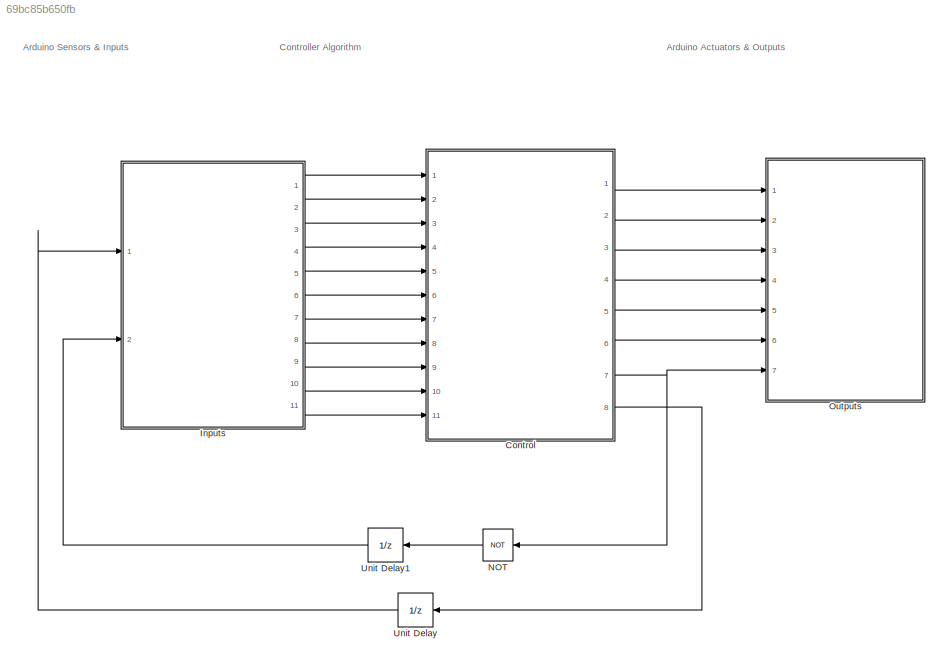
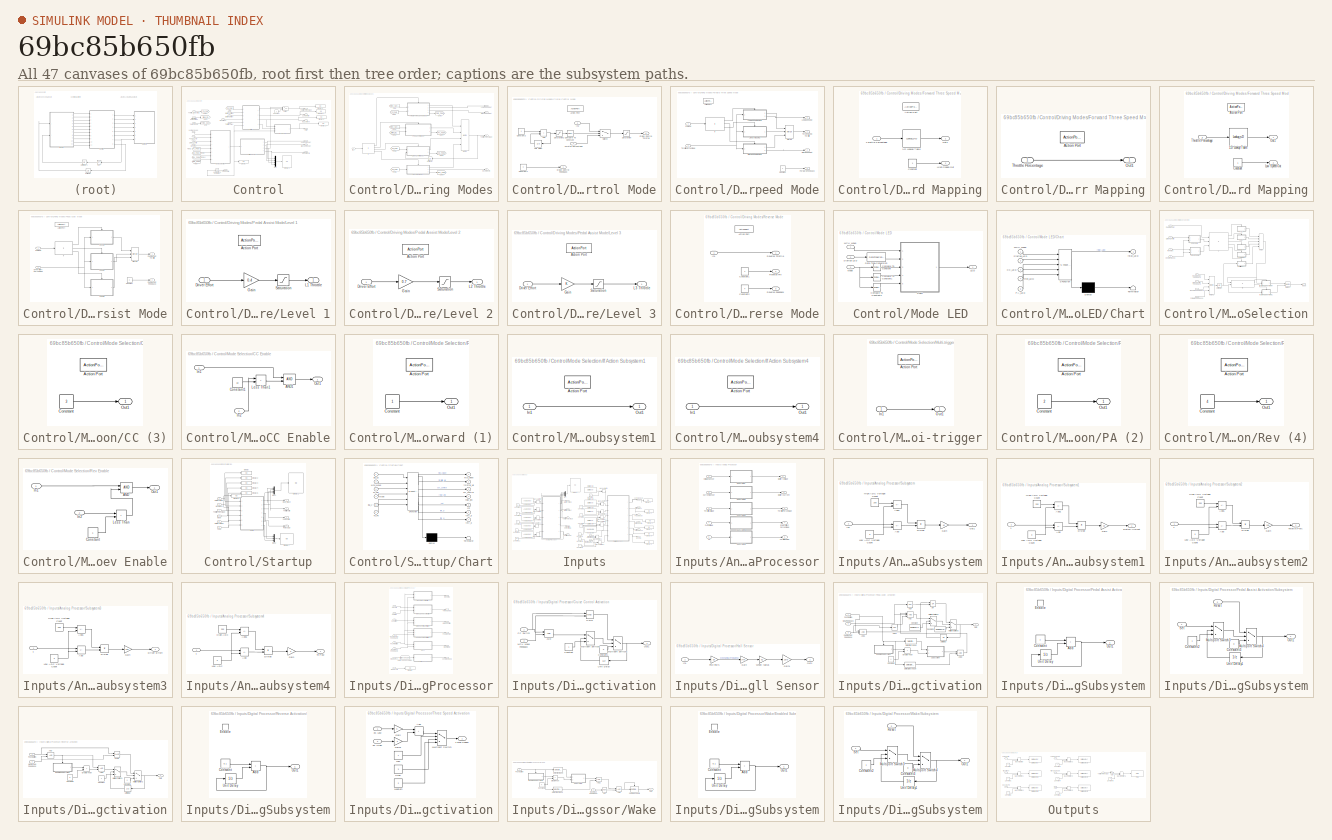
[diagram: thumbnail index - all 47 canvases of the model, root first then tree order]
MODEL slx_69bc85b650fb
KIND model
CONFIG AbsTol = auto
CONFIG EnableMultiTasking = on
CONFIG FixedStep = auto
CONFIG MaxStep = auto
CONFIG MinStep = auto
CONFIG RelTol = 1e-3
CONFIG SampleTimeConstraint = Unconstrained
CONFIG SolverName = ode45
CONFIG StartTime = 0.0
CONFIG StopTime = 10.0
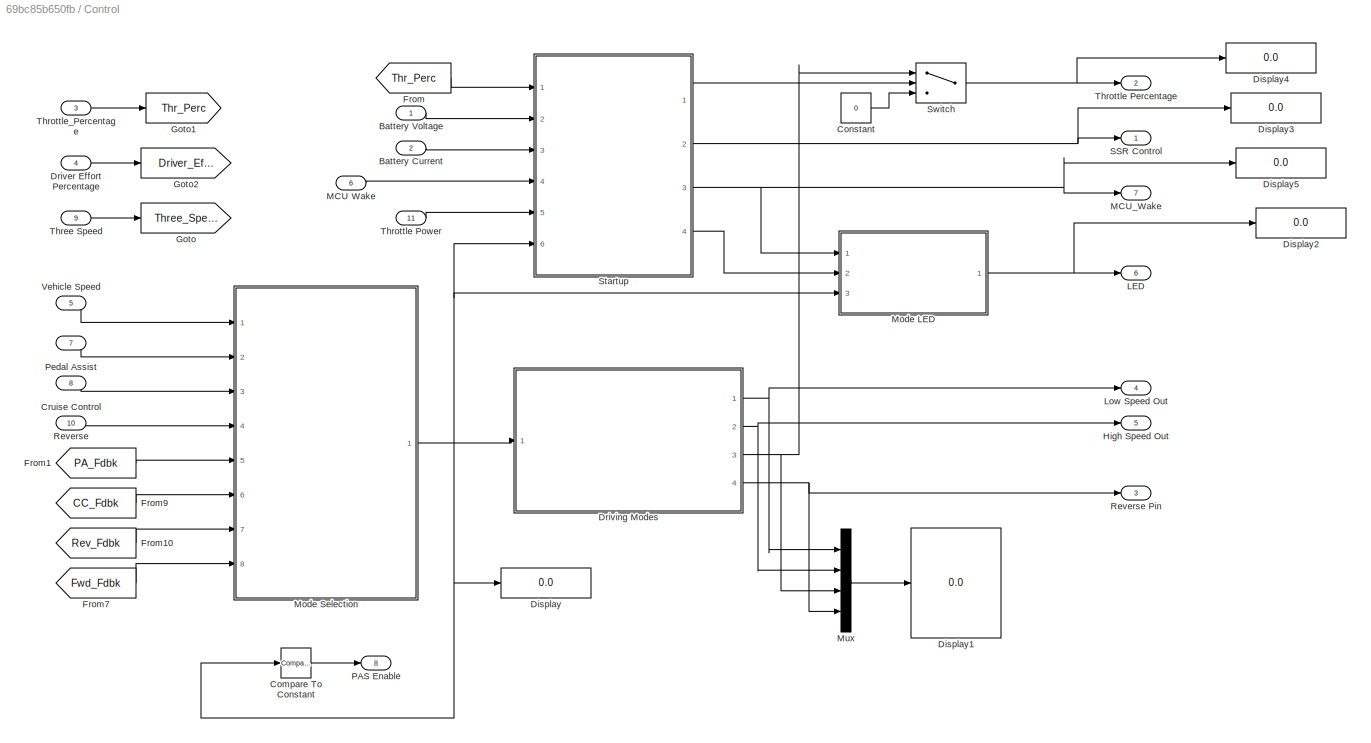
BLOCK [SubSystem] Control
  Ports = [11, 8]
  RequestExecContextInheritance = off
BLOCK [Inport] Control/Battery Current
  Port = 2
BLOCK [Inport] Control/Battery Voltage
BLOCK [Reference] Control/Compare To Constant  REF=simulink/Logic and Bit
Operations/Compare
To Constant
  Ports = [1, 1]
  SourceBlock = simulink/Logic and Bit\nOperations/Compare\nTo Constant
  SourceProductBaseCode = SL
  SourceType = Compare To Constant
BLOCK [Constant] Control/Constant
  Value = 0
BLOCK [Inport] Control/Cruise Control
  Port = 8
BLOCK [Display] Control/Display
  Decimation = 1
  Ports = [1]
BLOCK [Display] Control/Display1
  Decimation = 1
  Ports = [1]
BLOCK [Display] Control/Display2
  Decimation = 1
  Ports = [1]
BLOCK [Display] Control/Display3
  Decimation = 1
  Ports = [1]
BLOCK [Display] Control/Display4
  Decimation = 1
  Ports = [1]
BLOCK [Display] Control/Display5
  Decimation = 1
  Ports = [1]
BLOCK [Inport] Control/Driver Effort Percentage
  Port = 4
BLOCK [SubSystem] Control/Driving Modes
  Ports = [1, 4]
  RequestExecContextInheritance = off
BLOCK [SubSystem] Control/Driving Modes/Cruise Control Mode
  Ports = [2, 2, 0, 0, 0, 0, 0, 1]
  RequestExecContextInheritance = off
  TreatAsAtomicUnit = on
BLOCK [ActionPort] Control/Driving Modes/Cruise Control Mode/Action Port
  ActionPortLabel = elseif(u1 == 3)
  InitializeStates = reset
BLOCK [Sum] Control/Driving Modes/Cruise Control Mode/Add
  IconShape = rectangular
  Ports = [2, 1]
BLOCK [Reference] Control/Driving Modes/Cruise Control Mode/Compare To Constant  REF=simulink/Logic and Bit
Operations/Compare
To Constant
  Ports = [1, 1]
  SourceBlock = simulink/Logic and Bit\nOperations/Compare\nTo Constant
  SourceProductBaseCode = SL
  SourceType = Compare To Constant
BLOCK [Constant] Control/Driving Modes/Cruise Control Mode/Constant1
  Value = 3
BLOCK [Constant] Control/Driving Modes/Cruise Control Mode/Constant2
BLOCK [Outport] Control/Driving Modes/Cruise Control Mode/Cruise Control Feedback
BLOCK [Outport] Control/Driving Modes/Cruise Control Mode/Cruise Control Throttle
  Port = 2
BLOCK [Inport] Control/Driving Modes/Cruise Control Mode/In2
  Port = 2
BLOCK [Saturate] Control/Driving Modes/Cruise Control Mode/Saturation
  LowerLimit = 20
  UpperLimit = 50
BLOCK [Saturate] Control/Driving Modes/Cruise Control Mode/Saturation1
  LowerLimit = 0
  UpperLimit = 2
BLOCK [Switch] Control/Driving Modes/Cruise Control Mode/Switch
  Criteria = u2 > Threshold
  InputSameDT = off
  SaturateOnIntegerOverflow = off
BLOCK [Inport] Control/Driving Modes/Cruise Control Mode/Throttle Percentage
BLOCK [UnitDelay] Control/Driving Modes/Cruise Control Mode/Unit Delay
  HasFrameUpgradeWarning = on
  NameLocation = top
  SampleTime = -1
BLOCK [SubSystem] Control/Driving Modes/Forward Three Speed Mode
  Ports = [2, 4, 0, 0, 0, 0, 0, 1]
  RequestExecContextInheritance = off
  TreatAsAtomicUnit = on
BLOCK [Inport] Control/Driving Modes/Forward Three Speed Mode/3S Mode
BLOCK [ActionPort] Control/Driving Modes/Forward Three Speed Mode/Action Port
  ActionPortLabel = if(u1 == 1)
  InitializeStates = reset
BLOCK [Constant] Control/Driving Modes/Forward Three Speed Mode/Constant
BLOCK [Outport] Control/Driving Modes/Forward Three Speed Mode/Forward Feedback
  InitialOutput = 1
  Port = 4
BLOCK [SubSystem] Control/Driving Modes/Forward Three Speed Mode/High Speed Mapping
  Ports = [1, 2, 0, 0, 0, 0, 0, 1]
  RequestExecContextInheritance = off
  TreatAsAtomicUnit = on
BLOCK [Lookup_n-D] Control/Driving Modes/Forward Three Speed Mode/High Speed Mapping/1-D Lookup Table
  BreakpointsForDimension1 = [0:10:100]
  InputPortMap = u0
  InternalRulePriority = Speed
  NumberOfTableDimensions = 1
  Ports = [1, 1]
  RndMeth = Simplest
  Table = [0, 10, 20, 30, 40, 60, 80, 100, 100, 100, 100]
BLOCK [ActionPort] Control/Driving Modes/Forward Three Speed Mode/High Speed Mapping/Action Port
  ActionPortLabel = elseif(u1 == 3)
  InitializeStates = reset
BLOCK [Constant] Control/Driving Modes/Forward Three Speed Mode/High Speed Mapping/Constant
BLOCK [Outport] Control/Driving Modes/Forward Three Speed Mode/High Speed Mapping/High Speed Out
  InitialOutput = 0
  OutputWhenDisabled = reset
  Port = 2
BLOCK [Outport] Control/Driving Modes/Forward Three Speed Mode/High Speed Mapping/Out1
BLOCK [Inport] Control/Driving Modes/Forward Three Speed Mode/High Speed Mapping/Throttle Percentage
BLOCK [Outport] Control/Driving Modes/Forward Three Speed Mode/High Speed Out
  Port = 3
BLOCK [If] Control/Driving Modes/Forward Three Speed Mode/If
  ElseIfExpressions = u1 == 3
  IfExpression = u1 == 1
  Ports = [1, 3]
BLOCK [SubSystem] Control/Driving Modes/Forward Three Speed Mode/Linear Mapping
  Ports = [1, 1, 0, 0, 0, 0, 0, 1]
  RequestExecContextInheritance = off
  TreatAsAtomicUnit = on
BLOCK [ActionPort] Control/Driving Modes/Forward Three Speed Mode/Linear Mapping/Action Port
  ActionPortLabel = else
BLOCK [Outport] Control/Driving Modes/Forward Three Speed Mode/Linear Mapping/Out1
BLOCK [Inport] Control/Driving Modes/Forward Three Speed Mode/Linear Mapping/Throttle Percentage
BLOCK [SubSystem] Control/Driving Modes/Forward Three Speed Mode/Low Speed Mapping
  Ports = [1, 2, 0, 0, 0, 0, 0, 1]
  RequestExecContextInheritance = off
  TreatAsAtomicUnit = on
BLOCK [Lookup_n-D] Control/Driving Modes/Forward Three Speed Mode/Low Speed Mapping/1-D Lookup Table
  BreakpointsForDimension1 = [0:10:100]
  InputPortMap = u0
  InternalRulePriority = Speed
  NumberOfTableDimensions = 1
  Ports = [1, 1]
  RndMeth = Simplest
  Table = [0:5:50]
BLOCK [ActionPort] Control/Driving Modes/Forward Three Speed Mode/Low Speed Mapping/Action Port
  ActionPortLabel = if(u1 == 1)
  InitializeStates = reset
BLOCK [Constant] Control/Driving Modes/Forward Three Speed Mode/Low Speed Mapping/Constant
BLOCK [Outport] Control/Driving Modes/Forward Three Speed Mode/Low Speed Mapping/Low Speed Out
  InitialOutput = 0
  OutputWhenDisabled = reset
  Port = 2
BLOCK [Outport] Control/Driving Modes/Forward Three Speed Mode/Low Speed Mapping/Out1
BLOCK [Inport] Control/Driving Modes/Forward Three Speed Mode/Low Speed Mapping/Throttle Percentage
BLOCK [Outport] Control/Driving Modes/Forward Three Speed Mode/Low Speed Out
  Port = 2
BLOCK [Merge] Control/Driving Modes/Forward Three Speed Mode/Merge
  Inputs = 3
  Ports = [3, 1]
BLOCK [Outport] Control/Driving Modes/Forward Three Speed Mode/Three Speed Throttle
BLOCK [Inport] Control/Driving Modes/Forward Three Speed Mode/Throttle Percentage
  Port = 2
BLOCK [From] Control/Driving Modes/From
  GotoTag = Three_Speed
  TagVisibility = global
BLOCK [From] Control/Driving Modes/From1
  GotoTag = Thr_Perc
  TagVisibility = global
BLOCK [From] Control/Driving Modes/From2
  GotoTag = Thr_Perc
  TagVisibility = global
BLOCK [From] Control/Driving Modes/From3
  GotoTag = Driver_Effort
  TagVisibility = global
BLOCK [From] Control/Driving Modes/From4
  GotoTag = Three_Speed
  TagVisibility = global
BLOCK [From] Control/Driving Modes/From6
  GotoTag = Thr_Perc
  TagVisibility = global
BLOCK [Goto] Control/Driving Modes/Goto3
  GotoTag = Fwd_Fdbk
  TagVisibility = global
BLOCK [Goto] Control/Driving Modes/Goto4
  GotoTag = PA_Fdbk
  TagVisibility = global
BLOCK [Goto] Control/Driving Modes/Goto5
  GotoTag = CC_Fdbk
  TagVisibility = global
BLOCK [Goto] Control/Driving Modes/Goto6
  GotoTag = Rev_Fdbk
  TagVisibility = global
BLOCK [Outport] Control/Driving Modes/High Speed Out
  Port = 2
BLOCK [If] Control/Driving Modes/If
  ElseIfExpressions = u1 == 2,u1 == 3,u1 == 4
  IfExpression = u1 == 1
  Ports = [1, 4]
  ShowElse = off
BLOCK [Inport] Control/Driving Modes/In1
BLOCK [Outport] Control/Driving Modes/Low Speed Out
BLOCK [Merge] Control/Driving Modes/Merge
  Inputs = 4
  Ports = [4, 1]
BLOCK [SubSystem] Control/Driving Modes/Pedal Assist Mode
  Ports = [2, 2, 0, 0, 0, 0, 0, 1]
  RequestExecContextInheritance = off
  TreatAsAtomicUnit = on
BLOCK [Inport] Control/Driving Modes/Pedal Assist Mode/3S Mode
BLOCK [ActionPort] Control/Driving Modes/Pedal Assist Mode/Action Port
  ActionPortLabel = elseif(u1 == 2)
  InitializeStates = reset
BLOCK [Constant] Control/Driving Modes/Pedal Assist Mode/Constant
  Value = 2
BLOCK [Inport] Control/Driving Modes/Pedal Assist Mode/Driver Effort Percentage
  Port = 2
BLOCK [If] Control/Driving Modes/Pedal Assist Mode/If
  ElseIfExpressions = u1 == 2,u1 == 3
  IfExpression = u1 == 1
  Ports = [1, 3]
  ShowElse = off
BLOCK [SubSystem] Control/Driving Modes/Pedal Assist Mode/Level 1
  Ports = [1, 1, 0, 0, 0, 0, 0, 1]
  RequestExecContextInheritance = off
  TreatAsAtomicUnit = on
BLOCK [ActionPort] Control/Driving Modes/Pedal Assist Mode/Level 1/Action Port
  ActionPortLabel = if(u1 == 1)
  InitializeStates = reset
BLOCK [Inport] Control/Driving Modes/Pedal Assist Mode/Level 1/Driver Effort
BLOCK [Gain] Control/Driving Modes/Pedal Assist Mode/Level 1/Gain
  Gain = 0.4
BLOCK [Outport] Control/Driving Modes/Pedal Assist Mode/Level 1/L1 Throttle
BLOCK [Saturate] Control/Driving Modes/Pedal Assist Mode/Level 1/Saturation
  LowerLimit = 10
  UpperLimit = 40
BLOCK [SubSystem] Control/Driving Modes/Pedal Assist Mode/Level 2
  Ports = [1, 1, 0, 0, 0, 0, 0, 1]
  RequestExecContextInheritance = off
  TreatAsAtomicUnit = on
BLOCK [ActionPort] Control/Driving Modes/Pedal Assist Mode/Level 2/Action Port
  ActionPortLabel = elseif(u1 == 2)
  InitializeStates = reset
BLOCK [Inport] Control/Driving Modes/Pedal Assist Mode/Level 2/Driver Effort
BLOCK [Gain] Control/Driving Modes/Pedal Assist Mode/Level 2/Gain
  Gain = 0.7
BLOCK [Outport] Control/Driving Modes/Pedal Assist Mode/Level 2/L2 Throttle
BLOCK [Saturate] Control/Driving Modes/Pedal Assist Mode/Level 2/Saturation
  LowerLimit = 40
  UpperLimit = 70
BLOCK [SubSystem] Control/Driving Modes/Pedal Assist Mode/Level 3
  Ports = [1, 1, 0, 0, 0, 0, 0, 1]
  RequestExecContextInheritance = off
  TreatAsAtomicUnit = on
BLOCK [ActionPort] Control/Driving Modes/Pedal Assist Mode/Level 3/Action Port
  ActionPortLabel = elseif(u1 == 3)
  InitializeStates = reset
BLOCK [Inport] Control/Driving Modes/Pedal Assist Mode/Level 3/Driver Effort
BLOCK [Gain] Control/Driving Modes/Pedal Assist Mode/Level 3/Gain
BLOCK [Outport] Control/Driving Modes/Pedal Assist Mode/Level 3/L3 Throttle
BLOCK [Saturate] Control/Driving Modes/Pedal Assist Mode/Level 3/Saturation
  LowerLimit = 70
  UpperLimit = 100
BLOCK [Merge] Control/Driving Modes/Pedal Assist Mode/Merge
  Inputs = 3
  Ports = [3, 1]
BLOCK [Outport] Control/Driving Modes/Pedal Assist Mode/Pedal Assist Feedback
  Port = 2
BLOCK [Outport] Control/Driving Modes/Pedal Assist Mode/Pedal Assist Throttle
BLOCK [SubSystem] Control/Driving Modes/Reverse Mode
  Ports = [1, 3, 0, 0, 0, 0, 0, 1]
  RequestExecContextInheritance = off
  TreatAsAtomicUnit = on
BLOCK [ActionPort] Control/Driving Modes/Reverse Mode/Action Port
  ActionPortLabel = elseif(u1 == 4)
  InitializeStates = reset
BLOCK [Constant] Control/Driving Modes/Reverse Mode/Constant1
BLOCK [Constant] Control/Driving Modes/Reverse Mode/Constant2
  Value = 4
BLOCK [Inport] Control/Driving Modes/Reverse Mode/In1
BLOCK [Outport] Control/Driving Modes/Reverse Mode/Reverse Feedback
  Port = 3
BLOCK [Outport] Control/Driving Modes/Reverse Mode/Reverse Pin
  InitialOutput = 0
  OutputWhenDisabled = reset
  Port = 2
BLOCK [Outport] Control/Driving Modes/Reverse Mode/Reverse Throttle
BLOCK [Outport] Control/Driving Modes/Reverse Pin
  Port = 4
BLOCK [Outport] Control/Driving Modes/Throttle Percentage
  Port = 3
BLOCK [UnitDelay] Control/Driving Modes/Unit Delay
  HasFrameUpgradeWarning = on
  SampleTime = -1
BLOCK [From] Control/From
  GotoTag = Thr_Perc
  TagVisibility = global
BLOCK [From] Control/From1
  GotoTag = PA_Fdbk
  TagVisibility = global
BLOCK [From] Control/From10
  GotoTag = Rev_Fdbk
  TagVisibility = global
BLOCK [From] Control/From7
  GotoTag = Fwd_Fdbk
  TagVisibility = global
BLOCK [From] Control/From9
  GotoTag = CC_Fdbk
  TagVisibility = global
BLOCK [Goto] Control/Goto
  GotoTag = Three_Speed
  TagVisibility = global
BLOCK [Goto] Control/Goto1
  GotoTag = Thr_Perc
  TagVisibility = global
BLOCK [Goto] Control/Goto2
  GotoTag = Driver_Effort
  TagVisibility = global
BLOCK [Outport] Control/High Speed Out
  Port = 5
BLOCK [Outport] Control/LED
  Port = 6
BLOCK [Outport] Control/Low Speed Out
  Port = 4
BLOCK [Inport] Control/MCU Wake
  Port = 6
BLOCK [Outport] Control/MCU_Wake
  Port = 7
BLOCK [SubSystem] Control/Mode LED
  Ports = [3, 1]
  RequestExecContextInheritance = off
BLOCK [SubSystem] Control/Mode LED/Chart
  ErrorFcn = Stateflow.Translate.translate
  PermitHierarchicalResolution = ExplicitOnly
  Ports = [5, 1]
  RequestExecContextInheritance = off
  SFBlockType = Chart
  TreatAsAtomicUnit = on
BLOCK [Demux] Control/Mode LED/Chart/ Demux 
  Outputs = 1
  Ports = [1, 1]
BLOCK [S-Function] Control/Mode LED/Chart/ SFunction 
  EnableBusSupport = off
  FunctionName = sf_sfun
  PortCounts = [5 2]
  Ports = [5, 2]
  SFcnIsStateOwnerBlock = off
  SFunctionDeploymentMode = off
  Tag = Stateflow S-Function 1
BLOCK [Terminator] Control/Mode LED/Chart/ Terminator 
BLOCK [Inport] Control/Mode LED/Chart/CC_LED
  Port = 3
BLOCK [Inport] Control/Mode LED/Chart/MCU_Wake
BLOCK [Inport] Control/Mode LED/Chart/PA_LED
  Port = 5
BLOCK [Inport] Control/Mode LED/Chart/Rev_LED
  Port = 4
BLOCK [Inport] Control/Mode LED/Chart/Startup_LED
  Port = 2
BLOCK [Outport] Control/Mode LED/Chart/relay_LED
BLOCK [Reference] Control/Mode LED/Compare To Constant  REF=simulink/Logic and Bit
Operations/Compare
To Constant
  Ports = [1, 1]
  SourceBlock = simulink/Logic and Bit\nOperations/Compare\nTo Constant
  SourceProductBaseCode = SL
  SourceType = Compare To Constant
BLOCK [Reference] Control/Mode LED/Compare To Constant1  REF=simulink/Logic and Bit
Operations/Compare
To Constant
  Ports = [1, 1]
  SourceBlock = simulink/Logic and Bit\nOperations/Compare\nTo Constant
  SourceProductBaseCode = SL
  SourceType = Compare To Constant
BLOCK [Reference] Control/Mode LED/Compare To Constant2  REF=simulink/Logic and Bit
Operations/Compare
To Constant
  Ports = [1, 1]
  SourceBlock = simulink/Logic and Bit\nOperations/Compare\nTo Constant
  SourceProductBaseCode = SL
  SourceType = Compare To Constant
BLOCK [DataTypeConversion] Control/Mode LED/Data Type Conversion
  OutDataTypeStr = boolean
  RndMeth = Floor
  SaturateOnIntegerOverflow = off
BLOCK [Outport] Control/Mode LED/LED
BLOCK [Inport] Control/Mode LED/MCU_Wake
BLOCK [Inport] Control/Mode LED/Mode
  Port = 3
BLOCK [Inport] Control/Mode LED/Startup LED
  Port = 2
BLOCK [SubSystem] Control/Mode Selection
  Ports = [8, 1]
  RequestExecContextInheritance = off
BLOCK [SubSystem] Control/Mode Selection/CC (3)
  Ports = [0, 1, 0, 0, 0, 0, 0, 1]
  RequestExecContextInheritance = off
  TreatAsAtomicUnit = on
BLOCK [ActionPort] Control/Mode Selection/CC (3)/Action Port
  ActionPortLabel = elseif(u1==0 & u2 ==1 & u3 ==0)
BLOCK [Constant] Control/Mode Selection/CC (3)/Constant
  Value = 3
BLOCK [Outport] Control/Mode Selection/CC (3)/Out1
BLOCK [SubSystem] Control/Mode Selection/CC Enable
  Ports = [2, 1]
  RequestExecContextInheritance = off
BLOCK [Logic] Control/Mode Selection/CC Enable/AND1
  AllPortsSameDT = off
  IconShape = distinctive
  OutDataTypeStr = boolean
  Ports = [2, 1]
BLOCK [Constant] Control/Mode Selection/CC Enable/Constant1
  Value = 10
BLOCK [Inport] Control/Mode Selection/CC Enable/In1
BLOCK [Inport] Control/Mode Selection/CC Enable/In2
  Port = 2
BLOCK [RelationalOperator] Control/Mode Selection/CC Enable/Less Than1
  InputSameDT = off
  Operator = <
  OutDataTypeStr = boolean
  Ports = [2, 1]
  RndMeth = Simplest
BLOCK [Outport] Control/Mode Selection/CC Enable/Out1
BLOCK [Inport] Control/Mode Selection/Cruise Control
  Port = 3
BLOCK [Inport] Control/Mode Selection/Cruise Control Feedback
  Port = 6
BLOCK [SubSystem] Control/Mode Selection/Forward (1)
  Ports = [0, 1, 0, 0, 0, 0, 0, 1]
  RequestExecContextInheritance = off
  TreatAsAtomicUnit = on
BLOCK [ActionPort] Control/Mode Selection/Forward (1)/Action Port
  ActionPortLabel = elseif(u1==0 & u2 ==0 & u3 ==0)
BLOCK [Constant] Control/Mode Selection/Forward (1)/Constant
BLOCK [Outport] Control/Mode Selection/Forward (1)/Out1
BLOCK [Inport] Control/Mode Selection/Forward Feedback
  Port = 8
BLOCK [If] Control/Mode Selection/If
  ElseIfExpressions = u1==0 & u2 ==1 & u3 ==0,u1==0 & u2 ==0 & u3 ==1,u1==0 & u2 ==0 & u3 ==0
  IfExpression = u1==1 & u2 ==0 & u3 ==0
  NumInputs = 3
  Ports = [3, 5]
BLOCK [SubSystem] Control/Mode Selection/If Action Subsystem1
  Ports = [1, 1, 0, 0, 0, 0, 0, 1]
  RequestExecContextInheritance = off
  TreatAsAtomicUnit = on
BLOCK [ActionPort] Control/Mode Selection/If Action Subsystem1/Action Port
  ActionPortLabel = else
BLOCK [Inport] Control/Mode Selection/If Action Subsystem1/In1
BLOCK [Outport] Control/Mode Selection/If Action Subsystem1/Out1
BLOCK [SubSystem] Control/Mode Selection/If Action Subsystem4
  Ports = [1, 1, 0, 0, 0, 0, 0, 1]
  RequestExecContextInheritance = off
  TreatAsAtomicUnit = on
BLOCK [ActionPort] Control/Mode Selection/If Action Subsystem4/Action Port
  ActionPortLabel = if(u1==u2 | (u1~=u2 & u2==1) | u1==1)
BLOCK [Inport] Control/Mode Selection/If Action Subsystem4/In1
BLOCK [Outport] Control/Mode Selection/If Action Subsystem4/Out1
BLOCK [If] Control/Mode Selection/If1
  IfExpression = u1==u2 | (u1~=u2 & u2==1) | u1==1
  NumInputs = 2
  Ports = [2, 2]
BLOCK [Merge] Control/Mode Selection/Merge
  Inputs = 5
  Ports = [5, 1]
BLOCK [Merge] Control/Mode Selection/Merge1
  Ports = [2, 1]
BLOCK [Merge] Control/Mode Selection/Merge2
  Inputs = 4
  Ports = [4, 1]
BLOCK [Outport] Control/Mode Selection/Mode
BLOCK [SubSystem] Control/Mode Selection/Multi-trigger
  Ports = [1, 1, 0, 0, 0, 0, 0, 1]
  RequestExecContextInheritance = off
  TreatAsAtomicUnit = on
BLOCK [ActionPort] Control/Mode Selection/Multi-trigger/Action Port
  ActionPortLabel = else
BLOCK [Inport] Control/Mode Selection/Multi-trigger/In1
BLOCK [Outport] Control/Mode Selection/Multi-trigger/Out1
BLOCK [SubSystem] Control/Mode Selection/PA (2)
  Ports = [0, 1, 0, 0, 0, 0, 0, 1]
  RequestExecContextInheritance = off
  TreatAsAtomicUnit = on
BLOCK [ActionPort] Control/Mode Selection/PA (2)/Action Port
  ActionPortLabel = if(u1==1 & u2 ==0 & u3 ==0)
BLOCK [Constant] Control/Mode Selection/PA (2)/Constant
  Value = 2
BLOCK [Outport] Control/Mode Selection/PA (2)/Out1
BLOCK [Inport] Control/Mode Selection/Pedal Assist
  Port = 2
BLOCK [Inport] Control/Mode Selection/Pedal Assist Feedback
  Port = 5
BLOCK [SubSystem] Control/Mode Selection/Rev (4)
  Ports = [0, 1, 0, 0, 0, 0, 0, 1]
  RequestExecContextInheritance = off
  TreatAsAtomicUnit = on
BLOCK [ActionPort] Control/Mode Selection/Rev (4)/Action Port
  ActionPortLabel = elseif(u1==0 & u2 ==0 & u3 ==1)
BLOCK [Constant] Control/Mode Selection/Rev (4)/Constant
  Value = 4
BLOCK [Outport] Control/Mode Selection/Rev (4)/Out1
BLOCK [SubSystem] Control/Mode Selection/Rev Enable
  Ports = [2, 1]
  RequestExecContextInheritance = off
BLOCK [Logic] Control/Mode Selection/Rev Enable/AND
  AllPortsSameDT = off
  IconShape = distinctive
  OutDataTypeStr = boolean
  Ports = [2, 1]
BLOCK [Constant] Control/Mode Selection/Rev Enable/Constant
BLOCK [Inport] Control/Mode Selection/Rev Enable/In1
BLOCK [Inport] Control/Mode Selection/Rev Enable/In2
  Port = 2
BLOCK [RelationalOperator] Control/Mode Selection/Rev Enable/Less Than
  InputSameDT = off
  Operator = <
  OutDataTypeStr = boolean
  Ports = [2, 1]
  RndMeth = Simplest
BLOCK [Outport] Control/Mode Selection/Rev Enable/Out1
BLOCK [Inport] Control/Mode Selection/Reverse
  Port = 4
BLOCK [Inport] Control/Mode Selection/Reverse Feedback
  Port = 7
BLOCK [UnitDelay] Control/Mode Selection/Unit Delay
  HasFrameUpgradeWarning = on
  InitialCondition = 1
  SampleTime = -1
BLOCK [Inport] Control/Mode Selection/Vehicle Speed
BLOCK [Mux] Control/Mux
  DisplayOption = bar
  Ports = [4, 1]
BLOCK [Outport] Control/PAS Enable
  Port = 8
BLOCK [Inport] Control/Pedal Assist
  Port = 7
BLOCK [Inport] Control/Reverse
  Port = 10
BLOCK [Outport] Control/Reverse Pin
  Port = 3
BLOCK [Outport] Control/SSR Control
BLOCK [SubSystem] Control/Startup
  Ports = [6, 4]
  RequestExecContextInheritance = off
BLOCK [Inport] Control/Startup/Battery Current
  Port = 3
BLOCK [Inport] Control/Startup/Battery Voltage
  Port = 2
BLOCK [SubSystem] Control/Startup/Chart
  ErrorFcn = Stateflow.Translate.translate
  PermitHierarchicalResolution = ExplicitOnly
  Ports = [6, 7]
  RequestExecContextInheritance = off
  SFBlockType = Chart
  TreatAsAtomicUnit = on
BLOCK [Demux] Control/Startup/Chart/ Demux 
  Outputs = 1
  Ports = [1, 1]
BLOCK [S-Function] Control/Startup/Chart/ SFunction 
  EnableBusSupport = off
  FunctionName = sf_sfun
  PortCounts = [6 8]
  Ports = [6, 8]
  SFcnIsStateOwnerBlock = off
  SFunctionDeploymentMode = off
  Tag = Stateflow S-Function 3
BLOCK [Terminator] Control/Startup/Chart/ Terminator 
BLOCK [Inport] Control/Startup/Chart/Ba_Cu
BLOCK [Inport] Control/Startup/Chart/Ba_V
  Port = 5
BLOCK [Inport] Control/Startup/Chart/MCU_Wake
  Port = 2
BLOCK [Inport] Control/Startup/Chart/Mode
  Port = 4
BLOCK [Inport] Control/Startup/Chart/Th_Per
  Port = 3
BLOCK [Inport] Control/Startup/Chart/Th_Po
  Port = 6
BLOCK [Outport] Control/Startup/Chart/cnt
  Port = 5
BLOCK [Outport] Control/Startup/Chart/mcu_wake
BLOCK [Outport] Control/Startup/Chart/relay_led
  Port = 4
BLOCK [Outport] Control/Startup/Chart/ssr_control
  Port = 3
BLOCK [Outport] Control/Startup/Chart/throttle_vld
  Port = 2
BLOCK [Outport] Control/Startup/Chart/tmr_b
  Port = 6
BLOCK [Outport] Control/Startup/Chart/tmr_d
  Port = 7
BLOCK [Display] Control/Startup/Display
  Decimation = 1
  Ports = [1]
BLOCK [Display] Control/Startup/Display1
  Decimation = 1
  Ports = [1]
BLOCK [Display] Control/Startup/Display2
  Decimation = 1
  Ports = [1]
BLOCK [Display] Control/Startup/Display3
  Decimation = 1
  Ports = [1]
BLOCK [Display] Control/Startup/Display4
  Decimation = 1
  Ports = [1]
BLOCK [Display] Control/Startup/Display5
  Decimation = 1
  Ports = [1]
BLOCK [Display] Control/Startup/Display6
  Decimation = 1
  Ports = [1]
BLOCK [Display] Control/Startup/Display7
  Decimation = 1
  Ports = [1]
BLOCK [Inport] Control/Startup/MCU Wake
  Port = 4
BLOCK [Outport] Control/Startup/MCU_Wake
  Port = 3
BLOCK [Inport] Control/Startup/Mode
  Port = 6
BLOCK [Mux] Control/Startup/Mux1
  DisplayOption = bar
  Ports = [4, 1]
BLOCK [Mux] Control/Startup/Mux2
  DisplayOption = bar
  Inputs = 3
  Ports = [3, 1]
BLOCK [Outport] Control/Startup/Relay LED
  Port = 4
BLOCK [Outport] Control/Startup/SSR Control
  Port = 2
BLOCK [Inport] Control/Startup/Th Po
  Port = 5
BLOCK [Inport] Control/Startup/Throttle Percentage
BLOCK [Outport] Control/Startup/Throttle Valid
BLOCK [Switch] Control/Switch
  Criteria = u2 > Threshold
  InputSameDT = off
  SaturateOnIntegerOverflow = off
BLOCK [Inport] Control/Three Speed
  Port = 9
BLOCK [Outport] Control/Throttle Percentage
  Port = 2
BLOCK [Inport] Control/Throttle Power
  Port = 11
BLOCK [Inport] Control/Throttle_Percentage
  Port = 3
BLOCK [Inport] Control/Vehicle Speed
  Port = 5
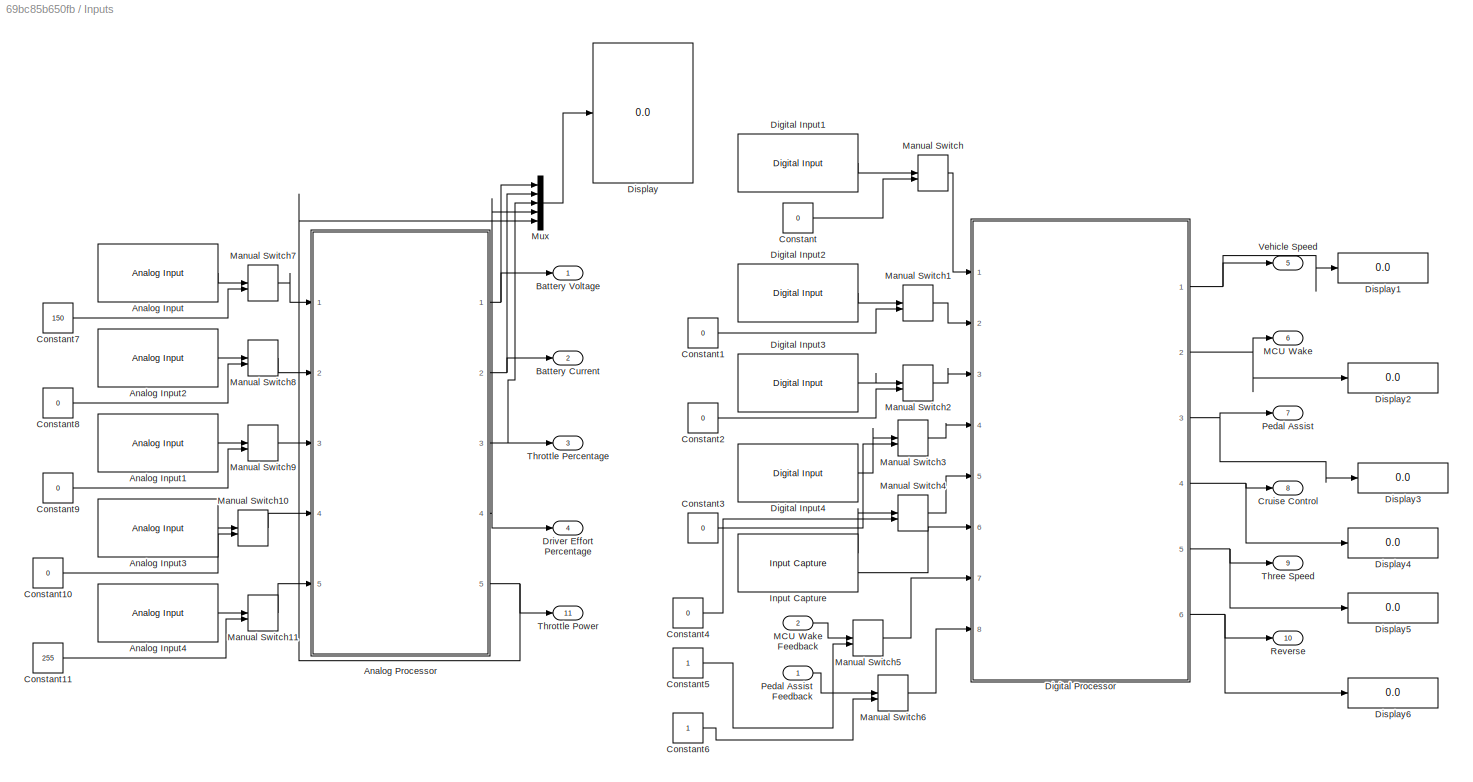
BLOCK [SubSystem] Inputs
  Ports = [2, 11]
  RequestExecContextInheritance = off
BLOCK [Reference] Inputs/Analog Input  REF=arduinolib/Analog Input
  Ports = [0, 1]
  SourceBlock = arduinolib/Analog Input
  SourceProductBaseCode = ARDUINO
  SourceType = Arduino Analog Input
BLOCK [Reference] Inputs/Analog Input1  REF=arduinolib/Analog Input
  Ports = [0, 1]
  SourceBlock = arduinolib/Analog Input
  SourceProductBaseCode = ARDUINO
  SourceType = Arduino Analog Input
BLOCK [Reference] Inputs/Analog Input2  REF=arduinolib/Analog Input
  Ports = [0, 1]
  SourceBlock = arduinolib/Analog Input
  SourceProductBaseCode = ARDUINO
  SourceType = Arduino Analog Input
BLOCK [Reference] Inputs/Analog Input3  REF=arduinolib/Analog Input
  Ports = [0, 1]
  SourceBlock = arduinolib/Analog Input
  SourceProductBaseCode = ARDUINO
  SourceType = Arduino Analog Input
BLOCK [Reference] Inputs/Analog Input4  REF=arduinolib/Analog Input
  Ports = [0, 1]
  SourceBlock = arduinolib/Analog Input
  SourceProductBaseCode = ARDUINO
  SourceType = Arduino Analog Input
BLOCK [SubSystem] Inputs/Analog Processor
  Ports = [5, 5]
  RequestExecContextInheritance = off
BLOCK [Outport] Inputs/Analog Processor/Battery Current
  Port = 2
BLOCK [Outport] Inputs/Analog Processor/Battery Voltage
BLOCK [Inport] Inputs/Analog Processor/Current Sensor
  Port = 2
BLOCK [Outport] Inputs/Analog Processor/Driver Effort Percentage
  Port = 4
BLOCK [Inport] Inputs/Analog Processor/PAS Voltage
  Port = 4
BLOCK [SubSystem] Inputs/Analog Processor/Subsystem
  Ports = [1, 1]
  RequestExecContextInheritance = off
BLOCK [Sum] Inputs/Analog Processor/Subsystem/Add
  IconShape = rectangular
  Inputs = +-
  Ports = [2, 1]
BLOCK [Sum] Inputs/Analog Processor/Subsystem/Add1
  IconShape = rectangular
  Inputs = +-
  Ports = [2, 1]
BLOCK [Product] Inputs/Analog Processor/Subsystem/Divide
  Inputs = /*
  Ports = [2, 1]
BLOCK [Gain] Inputs/Analog Processor/Subsystem/Gain
  Gain = 40
BLOCK [Constant] Inputs/Analog Processor/Subsystem/High ADC Voltage Count
  Value = 255
BLOCK [Inport] Inputs/Analog Processor/Subsystem/In1
BLOCK [Constant] Inputs/Analog Processor/Subsystem/Low ADC Voltage Count
  Value = 0
BLOCK [Outport] Inputs/Analog Processor/Subsystem/Out1
BLOCK [SubSystem] Inputs/Analog Processor/Subsystem1
  Ports = [1, 1]
  RequestExecContextInheritance = off
BLOCK [Inport] Inputs/Analog Processor/Subsystem1/1
BLOCK [Sum] Inputs/Analog Processor/Subsystem1/Add
  IconShape = rectangular
  Inputs = +-
  Ports = [2, 1]
BLOCK [Sum] Inputs/Analog Processor/Subsystem1/Add1
  IconShape = rectangular
  Inputs = +-
  Ports = [2, 1]
BLOCK [Outport] Inputs/Analog Processor/Subsystem1/Battery Current
BLOCK [Product] Inputs/Analog Processor/Subsystem1/Divide
  Inputs = /*
  Ports = [2, 1]
BLOCK [Gain] Inputs/Analog Processor/Subsystem1/Gain
  Gain = 20
BLOCK [Constant] Inputs/Analog Processor/Subsystem1/High ADC Voltage Count
  Value = 255
BLOCK [Constant] Inputs/Analog Processor/Subsystem1/Low ADC Voltage Count
  Value = 0
BLOCK [SubSystem] Inputs/Analog Processor/Subsystem2
  Ports = [1, 1]
  RequestExecContextInheritance = off
BLOCK [Inport] Inputs/Analog Processor/Subsystem2/1
BLOCK [Sum] Inputs/Analog Processor/Subsystem2/Add
  IconShape = rectangular
  Inputs = +-
  Ports = [2, 1]
BLOCK [Sum] Inputs/Analog Processor/Subsystem2/Add1
  IconShape = rectangular
  Inputs = +-
  Ports = [2, 1]
BLOCK [Product] Inputs/Analog Processor/Subsystem2/Divide
  Inputs = /*
  Ports = [2, 1]
BLOCK [Gain] Inputs/Analog Processor/Subsystem2/Gain
  Gain = 100
BLOCK [Constant] Inputs/Analog Processor/Subsystem2/High ADC Voltage Count
  Value = 255
BLOCK [Constant] Inputs/Analog Processor/Subsystem2/Low ADC Voltage Count
  Value = 0
BLOCK [Outport] Inputs/Analog Processor/Subsystem2/Throttle Perc
BLOCK [SubSystem] Inputs/Analog Processor/Subsystem3
  Ports = [1, 1]
  RequestExecContextInheritance = off
BLOCK [Inport] Inputs/Analog Processor/Subsystem3/1
BLOCK [Sum] Inputs/Analog Processor/Subsystem3/Add
  IconShape = rectangular
  Inputs = +-
  Ports = [2, 1]
BLOCK [Sum] Inputs/Analog Processor/Subsystem3/Add1
  IconShape = rectangular
  Inputs = +-
  Ports = [2, 1]
BLOCK [Product] Inputs/Analog Processor/Subsystem3/Divide
  Inputs = /*
  Ports = [2, 1]
BLOCK [Outport] Inputs/Analog Processor/Subsystem3/Driver Effort
BLOCK [Gain] Inputs/Analog Processor/Subsystem3/Gain
  Gain = 100
BLOCK [Constant] Inputs/Analog Processor/Subsystem3/High ADC Voltage Count
  Value = 255
BLOCK [Constant] Inputs/Analog Processor/Subsystem3/Low ADC Voltage Count
  Value = 0
BLOCK [SubSystem] Inputs/Analog Processor/Subsystem4
  Ports = [1, 1]
  RequestExecContextInheritance = off
BLOCK [Inport] Inputs/Analog Processor/Subsystem4/1
BLOCK [Sum] Inputs/Analog Processor/Subsystem4/Add
  IconShape = rectangular
  Inputs = +-
  Ports = [2, 1]
BLOCK [Sum] Inputs/Analog Processor/Subsystem4/Add1
  IconShape = rectangular
  Inputs = +-
  Ports = [2, 1]
BLOCK [Product] Inputs/Analog Processor/Subsystem4/Divide
  Inputs = /*
  Ports = [2, 1]
BLOCK [Gain] Inputs/Analog Processor/Subsystem4/Gain
  Gain = 5
BLOCK [Constant] Inputs/Analog Processor/Subsystem4/High ADC 
  Value = 255
BLOCK [Constant] Inputs/Analog Processor/Subsystem4/Low ADC 
  Value = 0
BLOCK [Outport] Inputs/Analog Processor/Subsystem4/Th Pow
BLOCK [Inport] Inputs/Analog Processor/TP
  Port = 5
BLOCK [Outport] Inputs/Analog Processor/Throttle Percentage
  Port = 3
BLOCK [Outport] Inputs/Analog Processor/Throttle Power
  Port = 5
BLOCK [Inport] Inputs/Analog Processor/Throttle Voltage
  Port = 3
BLOCK [Inport] Inputs/Analog Processor/Voltage Sensor
BLOCK [Outport] Inputs/Battery Current
  Port = 2
BLOCK [Outport] Inputs/Battery Voltage
BLOCK [Constant] Inputs/Constant
  Value = 0
BLOCK [Constant] Inputs/Constant1
  Value = 0
BLOCK [Constant] Inputs/Constant10
  Value = 0
BLOCK [Constant] Inputs/Constant11
  Value = 255
BLOCK [Constant] Inputs/Constant2
  Value = 0
BLOCK [Constant] Inputs/Constant3
  Value = 0
BLOCK [Constant] Inputs/Constant4
  Value = 0
BLOCK [Constant] Inputs/Constant5
BLOCK [Constant] Inputs/Constant6
BLOCK [Constant] Inputs/Constant7
  Value = 150
BLOCK [Constant] Inputs/Constant8
  Value = 0
BLOCK [Constant] Inputs/Constant9
  Value = 0
BLOCK [Outport] Inputs/Cruise Control
  Port = 8
BLOCK [Reference] Inputs/Digital Input1  REF=arduinolib/Digital Input
  Ports = [0, 1]
  SourceBlock = arduinolib/Digital Input
  SourceProductBaseCode = ARDUINO
  SourceType = Arduino Digital Input
BLOCK [Reference] Inputs/Digital Input2  REF=arduinolib/Digital Input
  Ports = [0, 1]
  SourceBlock = arduinolib/Digital Input
  SourceProductBaseCode = ARDUINO
  SourceType = Arduino Digital Input
BLOCK [Reference] Inputs/Digital Input3  REF=arduinolib/Digital Input
  Ports = [0, 1]
  SourceBlock = arduinolib/Digital Input
  SourceProductBaseCode = ARDUINO
  SourceType = Arduino Digital Input
BLOCK [Reference] Inputs/Digital Input4  REF=arduinolib/Digital Input
  Ports = [0, 1]
  SourceBlock = arduinolib/Digital Input
  SourceProductBaseCode = ARDUINO
  SourceType = Arduino Digital Input
BLOCK [SubSystem] Inputs/Digital Processor
  Ports = [8, 6]
  RequestExecContextInheritance = off
BLOCK [Inport] Inputs/Digital Processor/3S High
  Port = 2
BLOCK [Inport] Inputs/Digital Processor/3S Low
BLOCK [Inport] Inputs/Digital Processor/CC Switch
  Port = 3
BLOCK [Outport] Inputs/Digital Processor/Cruise Control
  Port = 4
BLOCK [SubSystem] Inputs/Digital Processor/Cruise Control Activation
  Ports = [2, 1]
  RequestExecContextInheritance = off
BLOCK [Logic] Inputs/Digital Processor/Cruise Control Activation/AND
  AllPortsSameDT = off
  IconShape = distinctive
  OutDataTypeStr = boolean
  Ports = [2, 1]
BLOCK [Inport] Inputs/Digital Processor/Cruise Control Activation/CC Switch
BLOCK [Constant] Inputs/Digital Processor/Cruise Control Activation/Constant
BLOCK [Constant] Inputs/Digital Processor/Cruise Control Activation/Constant1
  Value = 0
BLOCK [Inport] Inputs/Digital Processor/Cruise Control Activation/MCU Wake Feedback
  Port = 2
BLOCK [MultiPortSwitch] Inputs/Digital Processor/Cruise Control Activation/Multiport Switch1
  DataPortOrder = Zero-based contiguous
  InputSameDT = off
  Inputs = 2
  Ports = [3, 1]
  SaturateOnIntegerOverflow = off
  zeroidx = on
BLOCK [MultiPortSwitch] Inputs/Digital Processor/Cruise Control Activation/Multiport Switch2
  DataPortOrder = Zero-based contiguous
  InputSameDT = off
  Inputs = 2
  Ports = [3, 1]
  SaturateOnIntegerOverflow = off
  zeroidx = on
BLOCK [Logic] Inputs/Digital Processor/Cruise Control Activation/NAND
  AllPortsSameDT = off
  IconShape = distinctive
  Operator = NAND
  OutDataTypeStr = boolean
  Ports = [2, 1]
BLOCK [Outport] Inputs/Digital Processor/Cruise Control Activation/Out1
BLOCK [UnitDelay] Inputs/Digital Processor/Cruise Control Activation/Unit Delay
  HasFrameUpgradeWarning = on
  SampleTime = -1
BLOCK [DataTypeConversion] Inputs/Digital Processor/Data Type Conversion
  RndMeth = Floor
  SaturateOnIntegerOverflow = off
BLOCK [Display] Inputs/Digital Processor/Display
  Decimation = 1
  Ports = [1]
BLOCK [Inport] Inputs/Digital Processor/Duty Cycle
  Port = 6
BLOCK [Inport] Inputs/Digital Processor/Frequency
  Port = 5
BLOCK [SubSystem] Inputs/Digital Processor/Hall Sensor
  Ports = [1, 1]
  RequestExecContextInheritance = off
BLOCK [Gain] Inputs/Digital Processor/Hall Sensor/Gain
  Gain = 2*pi
BLOCK [Gain] Inputs/Digital Processor/Hall Sensor/Gain1
  Gain = 18/5
BLOCK [Inport] Inputs/Digital Processor/Hall Sensor/In1
BLOCK [Outport] Inputs/Digital Processor/Hall Sensor/Out1
BLOCK [Gain] Inputs/Digital Processor/Hall Sensor/Pole Pairs
  Gain = 1/5
BLOCK [Gain] Inputs/Digital Processor/Hall Sensor/Wheel radius
  Gain = 0.2
BLOCK [Outport] Inputs/Digital Processor/MCU Wake
  Port = 2
BLOCK [Inport] Inputs/Digital Processor/MCU Wake Feedback
  Port = 7
BLOCK [Outport] Inputs/Digital Processor/Pedal Assist
  Port = 3
BLOCK [SubSystem] Inputs/Digital Processor/Pedal Assist Activation
  Ports = [3, 1]
  RequestExecContextInheritance = off
BLOCK [Logic] Inputs/Digital Processor/Pedal Assist Activation/AND
  AllPortsSameDT = off
  IconShape = distinctive
  Inputs = 3
  OutDataTypeStr = boolean
  Ports = [3, 1]
BLOCK [Logic] Inputs/Digital Processor/Pedal Assist Activation/AND1
  AllPortsSameDT = off
  IconShape = distinctive
  OutDataTypeStr = boolean
  Ports = [2, 1]
BLOCK [Logic] Inputs/Digital Processor/Pedal Assist Activation/AND2
  AllPortsSameDT = off
  IconShape = distinctive
  OutDataTypeStr = boolean
  Ports = [2, 1]
BLOCK [Constant] Inputs/Digital Processor/Pedal Assist Activation/Constant
  Value = boolean(1)
BLOCK [Constant] Inputs/Digital Processor/Pedal Assist Activation/Constant1
  Value = boolean(0)
BLOCK [Constant] Inputs/Digital Processor/Pedal Assist Activation/Constant2
  Value = 4
BLOCK [Reference] Inputs/Digital Processor/Pedal Assist Activation/Detect Decrease  REF=simulink/Logic and Bit
Operations/Detect
Decrease
  Ports = [1, 1]
  SourceBlock = simulink/Logic and Bit\nOperations/Detect\nDecrease
  SourceProductBaseCode = SL
  SourceType = Detect Decrease
BLOCK [Reference] Inputs/Digital Processor/Pedal Assist Activation/Detect Increase  REF=simulink/Logic and Bit
Operations/Detect
Increase
  Ports = [1, 1]
  SourceBlock = simulink/Logic and Bit\nOperations/Detect\nIncrease
  SourceProductBaseCode = SL
  SourceType = Detect Increase
BLOCK [SubSystem] Inputs/Digital Processor/Pedal Assist Activation/Enabled Subsystem
  Ports = [0, 1, 1]
  RequestExecContextInheritance = off
  TreatAsAtomicUnit = on
BLOCK [Sum] Inputs/Digital Processor/Pedal Assist Activation/Enabled Subsystem/Add
  IconShape = rectangular
  Ports = [2, 1]
BLOCK [Constant] Inputs/Digital Processor/Pedal Assist Activation/Enabled Subsystem/Constant
BLOCK [EnablePort] Inputs/Digital Processor/Pedal Assist Activation/Enabled Subsystem/Enable
  Ports = []
  StatesWhenEnabling = reset
BLOCK [Outport] Inputs/Digital Processor/Pedal Assist Activation/Enabled Subsystem/Out1
BLOCK [UnitDelay] Inputs/Digital Processor/Pedal Assist Activation/Enabled Subsystem/Unit Delay
  HasFrameUpgradeWarning = on
  SampleTime = -1
BLOCK [RelationalOperator] Inputs/Digital Processor/Pedal Assist Activation/GreaterThan
  InputSameDT = off
  Operator = >
  OutDataTypeStr = boolean
  Ports = [2, 1]
  RndMeth = Simplest
BLOCK [Inport] Inputs/Digital Processor/Pedal Assist Activation/MCU Feedback
  Port = 2
BLOCK [MultiPortSwitch] Inputs/Digital Processor/Pedal Assist Activation/Multiport Switch1
  DataPortOrder = Zero-based contiguous
  InputSameDT = off
  Inputs = 2
  Ports = [3, 1]
  SaturateOnIntegerOverflow = off
  zeroidx = on
BLOCK [MultiPortSwitch] Inputs/Digital Processor/Pedal Assist Activation/Multiport Switch2
  DataPortOrder = Zero-based contiguous
  InputSameDT = off
  Inputs = 2
  Ports = [3, 1]
  SaturateOnIntegerOverflow = off
  zeroidx = on
BLOCK [Logic] Inputs/Digital Processor/Pedal Assist Activation/NOT
  AllPortsSameDT = off
  IconShape = distinctive
  Operator = NOT
  OutDataTypeStr = boolean
  Ports = [1, 1]
BLOCK [Logic] Inputs/Digital Processor/Pedal Assist Activation/NOT1
  AllPortsSameDT = off
  IconShape = distinctive
  Operator = NOT
  OutDataTypeStr = boolean
  Ports = [1, 1]
BLOCK [Logic] Inputs/Digital Processor/Pedal Assist Activation/OR
  AllPortsSameDT = off
  IconShape = distinctive
  Operator = OR
  OutDataTypeStr = boolean
  Ports = [2, 1]
BLOCK [Outport] Inputs/Digital Processor/Pedal Assist Activation/Out1
BLOCK [Inport] Inputs/Digital Processor/Pedal Assist Activation/Pedal Assist Feedback
  Port = 3
BLOCK [Inport] Inputs/Digital Processor/Pedal Assist Activation/Push Button
BLOCK [SubSystem] Inputs/Digital Processor/Pedal Assist Activation/Subsystem
  Ports = [2, 1]
  RequestExecContextInheritance = off
BLOCK [Constant] Inputs/Digital Processor/Pedal Assist Activation/Subsystem/Constant2
BLOCK [Constant] Inputs/Digital Processor/Pedal Assist Activation/Subsystem/Constant3
  Value = 0
BLOCK [MultiPortSwitch] Inputs/Digital Processor/Pedal Assist Activation/Subsystem/Multiport Switch3
  DataPortOrder = Zero-based contiguous
  InputSameDT = off
  Inputs = 2
  Ports = [3, 1]
  SaturateOnIntegerOverflow = off
  zeroidx = on
BLOCK [MultiPortSwitch] Inputs/Digital Processor/Pedal Assist Activation/Subsystem/Multiport Switch4
  DataPortOrder = Zero-based contiguous
  InputSameDT = off
  Inputs = 2
  Ports = [3, 1]
  SaturateOnIntegerOverflow = off
  zeroidx = on
BLOCK [Outport] Inputs/Digital Processor/Pedal Assist Activation/Subsystem/Out1
BLOCK [Inport] Inputs/Digital Processor/Pedal Assist Activation/Subsystem/Reset
  Port = 2
BLOCK [Inport] Inputs/Digital Processor/Pedal Assist Activation/Subsystem/Set
BLOCK [UnitDelay] Inputs/Digital Processor/Pedal Assist Activation/Subsystem/Unit Delay1
  HasFrameUpgradeWarning = on
  SampleTime = -1
BLOCK [UnitDelay] Inputs/Digital Processor/Pedal Assist Activation/Unit Delay
  HasFrameUpgradeWarning = on
  SampleTime = -1
BLOCK [Inport] Inputs/Digital Processor/Pedal Assist Feedback
  Port = 8
BLOCK [Inport] Inputs/Digital Processor/Push Button
  Port = 4
BLOCK [Outport] Inputs/Digital Processor/Reverse
  Port = 6
BLOCK [SubSystem] Inputs/Digital Processor/Reverse Activation
  Ports = [2, 1]
  RequestExecContextInheritance = off
BLOCK [Logic] Inputs/Digital Processor/Reverse Activation/AND
  AllPortsSameDT = off
  IconShape = distinctive
  OutDataTypeStr = boolean
  Ports = [2, 1]
BLOCK [Logic] Inputs/Digital Processor/Reverse Activation/AND1
  AllPortsSameDT = off
  IconShape = distinctive
  OutDataTypeStr = boolean
  Ports = [2, 1]
BLOCK [Constant] Inputs/Digital Processor/Reverse Activation/Constant
BLOCK [Constant] Inputs/Digital Processor/Reverse Activation/Constant1
  Value = 0
BLOCK [Constant] Inputs/Digital Processor/Reverse Activation/Constant2
  Value = 5
BLOCK [SubSystem] Inputs/Digital Processor/Reverse Activation/Enabled Subsystem
  Ports = [0, 1, 1]
  RequestExecContextInheritance = off
  TreatAsAtomicUnit = on
BLOCK [Sum] Inputs/Digital Processor/Reverse Activation/Enabled Subsystem/Add
  IconShape = rectangular
  Ports = [2, 1]
BLOCK [Constant] Inputs/Digital Processor/Reverse Activation/Enabled Subsystem/Constant
  Value = 0.1
BLOCK [EnablePort] Inputs/Digital Processor/Reverse Activation/Enabled Subsystem/Enable
  Ports = []
  StatesWhenEnabling = reset
BLOCK [Outport] Inputs/Digital Processor/Reverse Activation/Enabled Subsystem/Out1
BLOCK [UnitDelay] Inputs/Digital Processor/Reverse Activation/Enabled Subsystem/Unit Delay
  HasFrameUpgradeWarning = on
  SampleTime = -1
BLOCK [RelationalOperator] Inputs/Digital Processor/Reverse Activation/GreaterThan
  InputSameDT = off
  Operator = >
  OutDataTypeStr = boolean
  Ports = [2, 1]
  RndMeth = Simplest
BLOCK [Inport] Inputs/Digital Processor/Reverse Activation/MCU Wake Feedback
  Port = 2
BLOCK [MultiPortSwitch] Inputs/Digital Processor/Reverse Activation/Multiport Switch1
  DataPortOrder = Zero-based contiguous
  InputSameDT = off
  Inputs = 2
  Ports = [3, 1]
  SaturateOnIntegerOverflow = off
  zeroidx = on
BLOCK [MultiPortSwitch] Inputs/Digital Processor/Reverse Activation/Multiport Switch2
  DataPortOrder = Zero-based contiguous
  InputSameDT = off
  Inputs = 2
  Ports = [3, 1]
  SaturateOnIntegerOverflow = off
  zeroidx = on
BLOCK [Logic] Inputs/Digital Processor/Reverse Activation/NAND
  AllPortsSameDT = off
  IconShape = distinctive
  Operator = NAND
  OutDataTypeStr = boolean
  Ports = [2, 1]
BLOCK [Outport] Inputs/Digital Processor/Reverse Activation/Out1
BLOCK [Inport] Inputs/Digital Processor/Reverse Activation/Push Button
BLOCK [UnitDelay] Inputs/Digital Processor/Reverse Activation/Unit Delay
  HasFrameUpgradeWarning = on
  SampleTime = -1
BLOCK [Outport] Inputs/Digital Processor/Three Speed
  Port = 5
BLOCK [SubSystem] Inputs/Digital Processor/Three Speed Activation
  Ports = [2, 1]
  RequestExecContextInheritance = off
BLOCK [Inport] Inputs/Digital Processor/Three Speed Activation/3S High
  Port = 2
BLOCK [Inport] Inputs/Digital Processor/Three Speed Activation/3S Low
BLOCK [Sum] Inputs/Digital Processor/Three Speed Activation/Add
  IconShape = rectangular
  Ports = [2, 1]
BLOCK [Gain] Inputs/Digital Processor/Three Speed Activation/Gain
BLOCK [Gain] Inputs/Digital Processor/Three Speed Activation/Gain1
  Gain = 2
BLOCK [Constant] Inputs/Digital Processor/Three Speed Activation/High
  Value = 3
BLOCK [Constant] Inputs/Digital Processor/Three Speed Activation/Low
BLOCK [Constant] Inputs/Digital Processor/Three Speed Activation/Medium
  Value = 2
BLOCK [MultiPortSwitch] Inputs/Digital Processor/Three Speed Activation/Multiport Switch
  InputSameDT = off
  Ports = [4, 1]
  SaturateOnIntegerOverflow = off
BLOCK [Outport] Inputs/Digital Processor/Three Speed Activation/Three Speed
BLOCK [Outport] Inputs/Digital Processor/Vehicle Speed
BLOCK [SubSystem] Inputs/Digital Processor/Wake
  Ports = [2, 1]
  RequestExecContextInheritance = off
BLOCK [Logic] Inputs/Digital Processor/Wake/AND
  AllPortsSameDT = off
  IconShape = distinctive
  OutDataTypeStr = boolean
  Ports = [2, 1]
BLOCK [Logic] Inputs/Digital Processor/Wake/AND2
  AllPortsSameDT = off
  IconShape = distinctive
  OutDataTypeStr = boolean
  Ports = [2, 1]
BLOCK [Constant] Inputs/Digital Processor/Wake/Constant2
  Value = 4
BLOCK [Reference] Inputs/Digital Processor/Wake/Detect Decrease  REF=simulink/Logic and Bit
Operations/Detect
Decrease
  Ports = [1, 1]
  SourceBlock = simulink/Logic and Bit\nOperations/Detect\nDecrease
  SourceProductBaseCode = SL
  SourceType = Detect Decrease
BLOCK [Reference] Inputs/Digital Processor/Wake/Detect Increase  REF=simulink/Logic and Bit
Operations/Detect
Increase
  Ports = [1, 1]
  SourceBlock = simulink/Logic and Bit\nOperations/Detect\nIncrease
  SourceProductBaseCode = SL
  SourceType = Detect Increase
BLOCK [SubSystem] Inputs/Digital Processor/Wake/Enabled Subsystem
  Ports = [0, 1, 1]
  RequestExecContextInheritance = off
  TreatAsAtomicUnit = on
BLOCK [Sum] Inputs/Digital Processor/Wake/Enabled Subsystem/Add
  IconShape = rectangular
  Ports = [2, 1]
BLOCK [Constant] Inputs/Digital Processor/Wake/Enabled Subsystem/Constant
  Value = 0.1
BLOCK [EnablePort] Inputs/Digital Processor/Wake/Enabled Subsystem/Enable
  Ports = []
  StatesWhenEnabling = reset
BLOCK [Outport] Inputs/Digital Processor/Wake/Enabled Subsystem/Out1
BLOCK [UnitDelay] Inputs/Digital Processor/Wake/Enabled Subsystem/Unit Delay
  HasFrameUpgradeWarning = on
  SampleTime = -1
BLOCK [RelationalOperator] Inputs/Digital Processor/Wake/GreaterThan
  InputSameDT = off
  Operator = >
  OutDataTypeStr = boolean
  Ports = [2, 1]
  RndMeth = Simplest
BLOCK [Inport] Inputs/Digital Processor/Wake/MCU Wake Feedback
  Port = 2
BLOCK [Logic] Inputs/Digital Processor/Wake/NOT
  AllPortsSameDT = off
  IconShape = distinctive
  Operator = NOT
  OutDataTypeStr = boolean
  Ports = [1, 1]
BLOCK [Outport] Inputs/Digital Processor/Wake/Out1
BLOCK [Inport] Inputs/Digital Processor/Wake/Push Button
BLOCK [Reference] Inputs/Digital Processor/Wake/Sample and Hold  REF=dspsigops/Sample
and Hold
  Ports = [1, 1, 0, 1]
  SourceBlock = dspsigops/Sample\nand Hold
  SourceProductBaseCode = DS
  SourceType = Sample and Hold
BLOCK [SubSystem] Inputs/Digital Processor/Wake/Subsystem
  Ports = [2, 1]
  RequestExecContextInheritance = off
BLOCK [Constant] Inputs/Digital Processor/Wake/Subsystem/Constant2
BLOCK [Constant] Inputs/Digital Processor/Wake/Subsystem/Constant3
  Value = 0
BLOCK [MultiPortSwitch] Inputs/Digital Processor/Wake/Subsystem/Multiport Switch3
  DataPortOrder = Zero-based contiguous
  InputSameDT = off
  Inputs = 2
  Ports = [3, 1]
  SaturateOnIntegerOverflow = off
  zeroidx = on
BLOCK [MultiPortSwitch] Inputs/Digital Processor/Wake/Subsystem/Multiport Switch4
  DataPortOrder = Zero-based contiguous
  InputSameDT = off
  Inputs = 2
  Ports = [3, 1]
  SaturateOnIntegerOverflow = off
  zeroidx = on
BLOCK [Outport] Inputs/Digital Processor/Wake/Subsystem/Out1
BLOCK [Inport] Inputs/Digital Processor/Wake/Subsystem/Reset
  Port = 2
BLOCK [Inport] Inputs/Digital Processor/Wake/Subsystem/Set
BLOCK [UnitDelay] Inputs/Digital Processor/Wake/Subsystem/Unit Delay1
  HasFrameUpgradeWarning = on
  SampleTime = -1
BLOCK [Display] Inputs/Display
  Decimation = 1
  Ports = [1]
BLOCK [Display] Inputs/Display1
  Decimation = 1
  Ports = [1]
BLOCK [Display] Inputs/Display2
  Decimation = 1
  Ports = [1]
BLOCK [Display] Inputs/Display3
  Decimation = 1
  Ports = [1]
BLOCK [Display] Inputs/Display4
  Decimation = 1
  Ports = [1]
BLOCK [Display] Inputs/Display5
  Decimation = 1
  Ports = [1]
BLOCK [Display] Inputs/Display6
  Decimation = 1
  Ports = [1]
BLOCK [Outport] Inputs/Driver Effort Percentage
  Port = 4
BLOCK [Reference] Inputs/Input Capture  REF=arduinolib/Input Capture
  Ports = [0, 2]
  SourceBlock = arduinolib/Input Capture
  SourceProductBaseCode = ARDUINO
  SourceType = codertarget.arduinobase.internal.arduinoInputCapture
BLOCK [Outport] Inputs/MCU Wake
  Port = 6
BLOCK [Inport] Inputs/MCU Wake Feedback
  Port = 2
BLOCK [ManualSwitch] Inputs/Manual Switch
  CurrentSetting = 0
BLOCK [ManualSwitch] Inputs/Manual Switch1
  CurrentSetting = 0
BLOCK [ManualSwitch] Inputs/Manual Switch10
  CurrentSetting = 0
BLOCK [ManualSwitch] Inputs/Manual Switch11
  CurrentSetting = 0
BLOCK [ManualSwitch] Inputs/Manual Switch2
  CurrentSetting = 0
BLOCK [ManualSwitch] Inputs/Manual Switch3
  CurrentSetting = 0
BLOCK [ManualSwitch] Inputs/Manual Switch4
  CurrentSetting = 0
BLOCK [ManualSwitch] Inputs/Manual Switch5
BLOCK [ManualSwitch] Inputs/Manual Switch6
BLOCK [ManualSwitch] Inputs/Manual Switch7
  CurrentSetting = 0
BLOCK [ManualSwitch] Inputs/Manual Switch8
  CurrentSetting = 0
BLOCK [ManualSwitch] Inputs/Manual Switch9
  CurrentSetting = 0
BLOCK [Mux] Inputs/Mux
  DisplayOption = bar
  Inputs = 5
  Ports = [5, 1]
BLOCK [Outport] Inputs/Pedal Assist
  Port = 7
BLOCK [Inport] Inputs/Pedal Assist Feedback
BLOCK [Outport] Inputs/Reverse
  Port = 10
BLOCK [Outport] Inputs/Three Speed
  Port = 9
BLOCK [Outport] Inputs/Throttle Percentage
  Port = 3
BLOCK [Outport] Inputs/Throttle Power
  Port = 11
BLOCK [Outport] Inputs/Vehicle Speed
  Port = 5
BLOCK [Logic] NOT
  AllPortsSameDT = off
  IconShape = distinctive
  Operator = NOT
  OutDataTypeStr = boolean
  Ports = [1, 1]
BLOCK [SubSystem] Outputs
  Ports = [7]
  RequestExecContextInheritance = off
BLOCK [Constant] Outputs/Constant
  Value = 0
BLOCK [Constant] Outputs/Constant1
BLOCK [Constant] Outputs/Constant2
BLOCK [Constant] Outputs/Constant3
BLOCK [Constant] Outputs/Constant4
BLOCK [Constant] Outputs/Constant5
BLOCK [Constant] Outputs/Constant6
  Value = 0
BLOCK [Reference] Outputs/Digital Output  REF=arduinolib/Digital Output
  Ports = [1]
  SourceBlock = arduinolib/Digital Output
  SourceProductBaseCode = ARDUINO
  SourceType = Arduino Digital Output
BLOCK [Reference] Outputs/Digital Output1  REF=arduinolib/Digital Output
  Ports = [1]
  SourceBlock = arduinolib/Digital Output
  SourceProductBaseCode = ARDUINO
  SourceType = Arduino Digital Output
BLOCK [Reference] Outputs/Digital Output2  REF=arduinolib/Digital Output
  Ports = [1]
  SourceBlock = arduinolib/Digital Output
  SourceProductBaseCode = ARDUINO
  SourceType = Arduino Digital Output
BLOCK [Reference] Outputs/Digital Output3  REF=arduinolib/Digital Output
  Ports = [1]
  SourceBlock = arduinolib/Digital Output
  SourceProductBaseCode = ARDUINO
  SourceType = Arduino Digital Output
BLOCK [Reference] Outputs/Digital Output4  REF=arduinolib/Digital Output
  Ports = [1]
  SourceBlock = arduinolib/Digital Output
  SourceProductBaseCode = ARDUINO
  SourceType = Arduino Digital Output
BLOCK [Reference] Outputs/Digital Output5  REF=arduinolib/Digital Output
  Ports = [1]
  SourceBlock = arduinolib/Digital Output
  SourceProductBaseCode = ARDUINO
  SourceType = Arduino Digital Output
BLOCK [Gain] Outputs/Gain
  Gain = 2.5
BLOCK [Inport] Outputs/High Speed Out
  Port = 5
BLOCK [Inport] Outputs/LED
  Port = 6
BLOCK [Inport] Outputs/Low Speed Out
  Port = 4
BLOCK [Inport] Outputs/MCU Wake
  Port = 7
BLOCK [ManualSwitch] Outputs/Manual Switch
BLOCK [ManualSwitch] Outputs/Manual Switch1
BLOCK [ManualSwitch] Outputs/Manual Switch2
BLOCK [ManualSwitch] Outputs/Manual Switch3
BLOCK [ManualSwitch] Outputs/Manual Switch4
BLOCK [ManualSwitch] Outputs/Manual Switch5
BLOCK [ManualSwitch] Outputs/Manual Switch6
BLOCK [Reference] Outputs/PWM  REF=arduinolib/PWM
  Ports = [1]
  SourceBlock = arduinolib/PWM
  SourceProductBaseCode = ARDUINO
  SourceType = Arduino PWM
BLOCK [Inport] Outputs/Reverse Pin
  Port = 3
BLOCK [Inport] Outputs/SSR Control
BLOCK [Inport] Outputs/Throttle Percentage
  Port = 2
BLOCK [UnitDelay] Unit Delay
  HasFrameUpgradeWarning = on
  SampleTime = -1
BLOCK [UnitDelay] Unit Delay1
  HasFrameUpgradeWarning = on
  SampleTime = -1
ANNOTATION (root): Arduino Actuators & Outputs
ANNOTATION (root): Arduino Sensors & Inputs
ANNOTATION (root): Controller Algorithm
LINE Control/Battery Current:1 -> Control/Startup:3
LINE Control/Battery Voltage:1 -> Control/Startup:2
LINE Control/Compare To Constant:1 -> Control/PAS Enable:1
LINE Control/Constant:1 -> Control/Switch:3
LINE Control/Cruise Control:1 -> Control/Mode Selection:3
LINE Control/Driver Effort Percentage:1 -> Control/Goto2:1
NET Control/Driving Modes/Cruise Control Mode/Add:1 -> Control/Driving Modes/Cruise Control Mode/Saturation1:1, Control/Driving Modes/Cruise Control Mode/Unit Delay:1
LINE Control/Driving Modes/Cruise Control Mode/Compare To Constant:1 -> Control/Driving Modes/Cruise Control Mode/Switch:2
LINE Control/Driving Modes/Cruise Control Mode/Constant1:1 -> Control/Driving Modes/Cruise Control Mode/Cruise Control Feedback:1
LINE Control/Driving Modes/Cruise Control Mode/Constant2:1 -> Control/Driving Modes/Cruise Control Mode/Add:1
LINE Control/Driving Modes/Cruise Control Mode/In2:1 -> Control/Driving Modes/Cruise Control Mode/Switch:1
LINE Control/Driving Modes/Cruise Control Mode/Saturation1:1 -> Control/Driving Modes/Cruise Control Mode/Compare To Constant:1
LINE Control/Driving Modes/Cruise Control Mode/Saturation:1 -> Control/Driving Modes/Cruise Control Mode/Cruise Control Throttle:1
LINE Control/Driving Modes/Cruise Control Mode/Switch:1 -> Control/Driving Modes/Cruise Control Mode/Saturation:1
LINE Control/Driving Modes/Cruise Control Mode/Throttle Percentage:1 -> Control/Driving Modes/Cruise Control Mode/Switch:3
LINE Control/Driving Modes/Cruise Control Mode/Unit Delay:1 -> Control/Driving Modes/Cruise Control Mode/Add:2
LINE Control/Driving Modes/Cruise Control Mode:1 -> Control/Driving Modes/Merge:3
LINE Control/Driving Modes/Cruise Control Mode:2 -> Control/Driving Modes/Goto5:1
LINE Control/Driving Modes/Forward Three Speed Mode/3S Mode:1 -> Control/Driving Modes/Forward Three Speed Mode/If:1
LINE Control/Driving Modes/Forward Three Speed Mode/Constant:1 -> Control/Driving Modes/Forward Three Speed Mode/Forward Feedback:1
LINE Control/Driving Modes/Forward Three Speed Mode/High Speed Mapping/1-D Lookup Table:1 -> Control/Driving Modes/Forward Three Speed Mode/High Speed Mapping/Out1:1
LINE Control/Driving Modes/Forward Three Speed Mode/High Speed Mapping/Constant:1 -> Control/Driving Modes/Forward Three Speed Mode/High Speed Mapping/High Speed Out:1
LINE Control/Driving Modes/Forward Three Speed Mode/High Speed Mapping/Throttle Percentage:1 -> Control/Driving Modes/Forward Three Speed Mode/High Speed Mapping/1-D Lookup Table:1
LINE Control/Driving Modes/Forward Three Speed Mode/High Speed Mapping:1 -> Control/Driving Modes/Forward Three Speed Mode/Merge:3
LINE Control/Driving Modes/Forward Three Speed Mode/High Speed Mapping:2 -> Control/Driving Modes/Forward Three Speed Mode/High Speed Out:1
LINE Control/Driving Modes/Forward Three Speed Mode/If:1 -> Control/Driving Modes/Forward Three Speed Mode/Low Speed Mapping:ifaction
LINE Control/Driving Modes/Forward Three Speed Mode/If:2 -> Control/Driving Modes/Forward Three Speed Mode/High Speed Mapping:ifaction
LINE Control/Driving Modes/Forward Three Speed Mode/If:3 -> Control/Driving Modes/Forward Three Speed Mode/Linear Mapping:ifaction
LINE Control/Driving Modes/Forward Three Speed Mode/Linear Mapping/Throttle Percentage:1 -> Control/Driving Modes/Forward Three Speed Mode/Linear Mapping/Out1:1
LINE Control/Driving Modes/Forward Three Speed Mode/Linear Mapping:1 -> Control/Driving Modes/Forward Three Speed Mode/Merge:2
LINE Control/Driving Modes/Forward Three Speed Mode/Low Speed Mapping/1-D Lookup Table:1 -> Control/Driving Modes/Forward Three Speed Mode/Low Speed Mapping/Out1:1
LINE Control/Driving Modes/Forward Three Speed Mode/Low Speed Mapping/Constant:1 -> Control/Driving Modes/Forward Three Speed Mode/Low Speed Mapping/Low Speed Out:1
LINE Control/Driving Modes/Forward Three Speed Mode/Low Speed Mapping/Throttle Percentage:1 -> Control/Driving Modes/Forward Three Speed Mode/Low Speed Mapping/1-D Lookup Table:1
LINE Control/Driving Modes/Forward Three Speed Mode/Low Speed Mapping:1 -> Control/Driving Modes/Forward Three Speed Mode/Merge:1
LINE Control/Driving Modes/Forward Three Speed Mode/Low Speed Mapping:2 -> Control/Driving Modes/Forward Three Speed Mode/Low Speed Out:1
LINE Control/Driving Modes/Forward Three Speed Mode/Merge:1 -> Control/Driving Modes/Forward Three Speed Mode/Three Speed Throttle:1
NET Control/Driving Modes/Forward Three Speed Mode/Throttle Percentage:1 -> Control/Driving Modes/Forward Three Speed Mode/High Speed Mapping:1, Control/Driving Modes/Forward Three Speed Mode/Linear Mapping:1, Control/Driving Modes/Forward Three Speed Mode/Low Speed Mapping:1
LINE Control/Driving Modes/Forward Three Speed Mode:1 -> Control/Driving Modes/Merge:1
LINE Control/Driving Modes/Forward Three Speed Mode:2 -> Control/Driving Modes/Low Speed Out:1
LINE Control/Driving Modes/Forward Three Speed Mode:3 -> Control/Driving Modes/High Speed Out:1
LINE Control/Driving Modes/Forward Three Speed Mode:4 -> Control/Driving Modes/Goto3:1
LINE Control/Driving Modes/From1:1 -> Control/Driving Modes/Forward Three Speed Mode:2
LINE Control/Driving Modes/From2:1 -> Control/Driving Modes/Cruise Control Mode:1
LINE Control/Driving Modes/From3:1 -> Control/Driving Modes/Pedal Assist Mode:2
LINE Control/Driving Modes/From4:1 -> Control/Driving Modes/Pedal Assist Mode:1
LINE Control/Driving Modes/From6:1 -> Control/Driving Modes/Reverse Mode:1
LINE Control/Driving Modes/From:1 -> Control/Driving Modes/Forward Three Speed Mode:1
LINE Control/Driving Modes/If:1 -> Control/Driving Modes/Forward Three Speed Mode:ifaction
LINE Control/Driving Modes/If:2 -> Control/Driving Modes/Pedal Assist Mode:ifaction
LINE Control/Driving Modes/If:3 -> Control/Driving Modes/Cruise Control Mode:ifaction
LINE Control/Driving Modes/If:4 -> Control/Driving Modes/Reverse Mode:ifaction
LINE Control/Driving Modes/In1:1 -> Control/Driving Modes/If:1
NET Control/Driving Modes/Merge:1 -> Control/Driving Modes/Throttle Percentage:1, Control/Driving Modes/Unit Delay:1
LINE Control/Driving Modes/Pedal Assist Mode/3S Mode:1 -> Control/Driving Modes/Pedal Assist Mode/If:1
LINE Control/Driving Modes/Pedal Assist Mode/Constant:1 -> Control/Driving Modes/Pedal Assist Mode/Pedal Assist Feedback:1
NET Control/Driving Modes/Pedal Assist Mode/Driver Effort Percentage:1 -> Control/Driving Modes/Pedal Assist Mode/Level 1:1, Control/Driving Modes/Pedal Assist Mode/Level 2:1, Control/Driving Modes/Pedal Assist Mode/Level 3:1
LINE Control/Driving Modes/Pedal Assist Mode/If:1 -> Control/Driving Modes/Pedal Assist Mode/Level 1:ifaction
LINE Control/Driving Modes/Pedal Assist Mode/If:2 -> Control/Driving Modes/Pedal Assist Mode/Level 2:ifaction
LINE Control/Driving Modes/Pedal Assist Mode/If:3 -> Control/Driving Modes/Pedal Assist Mode/Level 3:ifaction
LINE Control/Driving Modes/Pedal Assist Mode/Level 1/Driver Effort:1 -> Control/Driving Modes/Pedal Assist Mode/Level 1/Gain:1
LINE Control/Driving Modes/Pedal Assist Mode/Level 1/Gain:1 -> Control/Driving Modes/Pedal Assist Mode/Level 1/Saturation:1
LINE Control/Driving Modes/Pedal Assist Mode/Level 1/Saturation:1 -> Control/Driving Modes/Pedal Assist Mode/Level 1/L1 Throttle:1
LINE Control/Driving Modes/Pedal Assist Mode/Level 1:1 -> Control/Driving Modes/Pedal Assist Mode/Merge:1
LINE Control/Driving Modes/Pedal Assist Mode/Level 2/Driver Effort:1 -> Control/Driving Modes/Pedal Assist Mode/Level 2/Gain:1
LINE Control/Driving Modes/Pedal Assist Mode/Level 2/Gain:1 -> Control/Driving Modes/Pedal Assist Mode/Level 2/Saturation:1
LINE Control/Driving Modes/Pedal Assist Mode/Level 2/Saturation:1 -> Control/Driving Modes/Pedal Assist Mode/Level 2/L2 Throttle:1
LINE Control/Driving Modes/Pedal Assist Mode/Level 2:1 -> Control/Driving Modes/Pedal Assist Mode/Merge:2
LINE Control/Driving Modes/Pedal Assist Mode/Level 3/Driver Effort:1 -> Control/Driving Modes/Pedal Assist Mode/Level 3/Gain:1
LINE Control/Driving Modes/Pedal Assist Mode/Level 3/Gain:1 -> Control/Driving Modes/Pedal Assist Mode/Level 3/Saturation:1
LINE Control/Driving Modes/Pedal Assist Mode/Level 3/Saturation:1 -> Control/Driving Modes/Pedal Assist Mode/Level 3/L3 Throttle:1
LINE Control/Driving Modes/Pedal Assist Mode/Level 3:1 -> Control/Driving Modes/Pedal Assist Mode/Merge:3
LINE Control/Driving Modes/Pedal Assist Mode/Merge:1 -> Control/Driving Modes/Pedal Assist Mode/Pedal Assist Throttle:1
LINE Control/Driving Modes/Pedal Assist Mode:1 -> Control/Driving Modes/Merge:2
LINE Control/Driving Modes/Pedal Assist Mode:2 -> Control/Driving Modes/Goto4:1
LINE Control/Driving Modes/Reverse Mode/Constant1:1 -> Control/Driving Modes/Reverse Mode/Reverse Pin:1
LINE Control/Driving Modes/Reverse Mode/Constant2:1 -> Control/Driving Modes/Reverse Mode/Reverse Feedback:1
LINE Control/Driving Modes/Reverse Mode/In1:1 -> Control/Driving Modes/Reverse Mode/Reverse Throttle:1
LINE Control/Driving Modes/Reverse Mode:1 -> Control/Driving Modes/Merge:4
LINE Control/Driving Modes/Reverse Mode:2 -> Control/Driving Modes/Reverse Pin:1
LINE Control/Driving Modes/Reverse Mode:3 -> Control/Driving Modes/Goto6:1
LINE Control/Driving Modes/Unit Delay:1 -> Control/Driving Modes/Cruise Control Mode:2
NET Control/Driving Modes:1 -> Control/Low Speed Out:1, Control/Mux:1
NET Control/Driving Modes:2 -> Control/High Speed Out:1, Control/Mux:2
NET Control/Driving Modes:3 -> Control/Mux:3, Control/Switch:1
NET Control/Driving Modes:4 -> Control/Mux:4, Control/Reverse Pin:1
LINE Control/From10:1 -> Control/Mode Selection:7
LINE Control/From1:1 -> Control/Mode Selection:5
LINE Control/From7:1 -> Control/Mode Selection:8
LINE Control/From9:1 -> Control/Mode Selection:6
LINE Control/From:1 -> Control/Startup:1
LINE Control/MCU Wake:1 -> Control/Startup:4
LINE Control/Mode LED/Chart:1 -> Control/Mode LED/LED:1
LINE Control/Mode LED/Compare To Constant1:1 -> Control/Mode LED/Chart:4
LINE Control/Mode LED/Compare To Constant2:1 -> Control/Mode LED/Chart:5
LINE Control/Mode LED/Compare To Constant:1 -> Control/Mode LED/Chart:3
LINE Control/Mode LED/Data Type Conversion:1 -> Control/Mode LED/Chart:2
LINE Control/Mode LED/MCU_Wake:1 -> Control/Mode LED/Chart:1
NET Control/Mode LED/Mode:1 -> Control/Mode LED/Compare To Constant1:1, Control/Mode LED/Compare To Constant2:1, Control/Mode LED/Compare To Constant:1
LINE Control/Mode LED/Startup LED:1 -> Control/Mode LED/Data Type Conversion:1
NET Control/Mode LED:1 -> Control/Display2:1, Control/LED:1
LINE Control/Mode Selection/CC (3)/Constant:1 -> Control/Mode Selection/CC (3)/Out1:1
LINE Control/Mode Selection/CC (3):1 -> Control/Mode Selection/Merge:2
LINE Control/Mode Selection/CC Enable/AND1:1 -> Control/Mode Selection/CC Enable/Out1:1
LINE Control/Mode Selection/CC Enable/Constant1:1 -> Control/Mode Selection/CC Enable/Less Than1:2
LINE Control/Mode Selection/CC Enable/In1:1 -> Control/Mode Selection/CC Enable/AND1:1
LINE Control/Mode Selection/CC Enable/In2:1 -> Control/Mode Selection/CC Enable/Less Than1:1
LINE Control/Mode Selection/CC Enable/Less Than1:1 -> Control/Mode Selection/CC Enable/AND1:2
LINE Control/Mode Selection/CC Enable:1 -> Control/Mode Selection/If:2
LINE Control/Mode Selection/Cruise Control Feedback:1 -> Control/Mode Selection/Merge2:2
LINE Control/Mode Selection/Cruise Control:1 -> Control/Mode Selection/CC Enable:1
LINE Control/Mode Selection/Forward (1)/Constant:1 -> Control/Mode Selection/Forward (1)/Out1:1
LINE Control/Mode Selection/Forward (1):1 -> Control/Mode Selection/Merge:4
LINE Control/Mode Selection/Forward Feedback:1 -> Control/Mode Selection/Merge2:4
LINE Control/Mode Selection/If Action Subsystem1/In1:1 -> Control/Mode Selection/If Action Subsystem1/Out1:1
LINE Control/Mode Selection/If Action Subsystem1:1 -> Control/Mode Selection/Merge1:2
LINE Control/Mode Selection/If Action Subsystem4/In1:1 -> Control/Mode Selection/If Action Subsystem4/Out1:1
LINE Control/Mode Selection/If Action Subsystem4:1 -> Control/Mode Selection/Merge1:1
LINE Control/Mode Selection/If1:1 -> Control/Mode Selection/If Action Subsystem4:ifaction
LINE Control/Mode Selection/If1:2 -> Control/Mode Selection/If Action Subsystem1:ifaction
LINE Control/Mode Selection/If:1 -> Control/Mode Selection/PA (2):ifaction
LINE Control/Mode Selection/If:2 -> Control/Mode Selection/CC (3):ifaction
LINE Control/Mode Selection/If:3 -> Control/Mode Selection/Rev (4):ifaction
LINE Control/Mode Selection/If:4 -> Control/Mode Selection/Forward (1):ifaction
LINE Control/Mode Selection/If:5 -> Control/Mode Selection/Multi-trigger:ifaction
LINE Control/Mode Selection/Merge1:1 -> Control/Mode Selection/Mode:1
LINE Control/Mode Selection/Merge2:1 -> Control/Mode Selection/Unit Delay:1
NET Control/Mode Selection/Merge:1 -> Control/Mode Selection/If Action Subsystem4:1, Control/Mode Selection/If1:1
LINE Control/Mode Selection/Multi-trigger/In1:1 -> Control/Mode Selection/Multi-trigger/Out1:1
LINE Control/Mode Selection/Multi-trigger:1 -> Control/Mode Selection/Merge:5
LINE Control/Mode Selection/PA (2)/Constant:1 -> Control/Mode Selection/PA (2)/Out1:1
LINE Control/Mode Selection/PA (2):1 -> Control/Mode Selection/Merge:1
LINE Control/Mode Selection/Pedal Assist Feedback:1 -> Control/Mode Selection/Merge2:1
LINE Control/Mode Selection/Pedal Assist:1 -> Control/Mode Selection/If:1
LINE Control/Mode Selection/Rev (4)/Constant:1 -> Control/Mode Selection/Rev (4)/Out1:1
LINE Control/Mode Selection/Rev (4):1 -> Control/Mode Selection/Merge:3
LINE Control/Mode Selection/Rev Enable/AND:1 -> Control/Mode Selection/Rev Enable/Out1:1
LINE Control/Mode Selection/Rev Enable/Constant:1 -> Control/Mode Selection/Rev Enable/Less Than:2
LINE Control/Mode Selection/Rev Enable/In1:1 -> Control/Mode Selection/Rev Enable/AND:1
LINE Control/Mode Selection/Rev Enable/In2:1 -> Control/Mode Selection/Rev Enable/Less Than:1
LINE Control/Mode Selection/Rev Enable/Less Than:1 -> Control/Mode Selection/Rev Enable/AND:2
LINE Control/Mode Selection/Rev Enable:1 -> Control/Mode Selection/If:3
LINE Control/Mode Selection/Reverse Feedback:1 -> Control/Mode Selection/Merge2:3
LINE Control/Mode Selection/Reverse:1 -> Control/Mode Selection/Rev Enable:1
NET Control/Mode Selection/Unit Delay:1 -> Control/Mode Selection/If Action Subsystem1:1, Control/Mode Selection/If1:2, Control/Mode Selection/Multi-trigger:1
NET Control/Mode Selection/Vehicle Speed:1 -> Control/Mode Selection/CC Enable:2, Control/Mode Selection/Rev Enable:2
NET Control/Mode Selection:1 -> Control/Compare To Constant:1, Control/Display:1, Control/Driving Modes:1, Control/Mode LED:3, Control/Startup:6
LINE Control/Mux:1 -> Control/Display1:1
LINE Control/Pedal Assist:1 -> Control/Mode Selection:2
LINE Control/Reverse:1 -> Control/Mode Selection:4
NET Control/Startup/Battery Current:1 -> Control/Startup/Chart:1, Control/Startup/Display:1
NET Control/Startup/Battery Voltage:1 -> Control/Startup/Chart:5, Control/Startup/Display5:1
NET Control/Startup/Chart:1 -> Control/Startup/MCU_Wake:1, Control/Startup/Mux1:1
NET Control/Startup/Chart:2 -> Control/Startup/Mux1:2, Control/Startup/Throttle Valid:1
NET Control/Startup/Chart:3 -> Control/Startup/Mux1:3, Control/Startup/SSR Control:1
NET Control/Startup/Chart:4 -> Control/Startup/Mux1:4, Control/Startup/Relay LED:1
LINE Control/Startup/Chart:5 -> Control/Startup/Mux2:1
LINE Control/Startup/Chart:6 -> Control/Startup/Mux2:2
LINE Control/Startup/Chart:7 -> Control/Startup/Mux2:3
NET Control/Startup/MCU Wake:1 -> Control/Startup/Chart:2, Control/Startup/Display2:1
NET Control/Startup/Mode:1 -> Control/Startup/Chart:4, Control/Startup/Display4:1
LINE Control/Startup/Mux1:1 -> Control/Startup/Display1:1
LINE Control/Startup/Mux2:1 -> Control/Startup/Display7:1
NET Control/Startup/Th Po:1 -> Control/Startup/Chart:6, Control/Startup/Display6:1
NET Control/Startup/Throttle Percentage:1 -> Control/Startup/Chart:3, Control/Startup/Display3:1
LINE Control/Startup:1 -> Control/Switch:2
NET Control/Startup:2 -> Control/Display3:1, Control/SSR Control:1
NET Control/Startup:3 -> Control/Display5:1, Control/MCU_Wake:1, Control/Mode LED:1
LINE Control/Startup:4 -> Control/Mode LED:2
NET Control/Switch:1 -> Control/Display4:1, Control/Throttle Percentage:1
LINE Control/Three Speed:1 -> Control/Goto:1
LINE Control/Throttle Power:1 -> Control/Startup:5
LINE Control/Throttle_Percentage:1 -> Control/Goto1:1
LINE Control/Vehicle Speed:1 -> Control/Mode Selection:1
LINE Control:1 -> Outputs:1
LINE Control:2 -> Outputs:2
LINE Control:3 -> Outputs:3
LINE Control:4 -> Outputs:4
LINE Control:5 -> Outputs:5
LINE Control:6 -> Outputs:6
NET Control:7 -> NOT:1, Outputs:7
LINE Control:8 -> Unit Delay:1
LINE Inputs/Analog Input1:1 -> Inputs/Manual Switch9:1
LINE Inputs/Analog Input2:1 -> Inputs/Manual Switch8:1
LINE Inputs/Analog Input3:1 -> Inputs/Manual Switch10:1
LINE Inputs/Analog Input4:1 -> Inputs/Manual Switch11:1
LINE Inputs/Analog Input:1 -> Inputs/Manual Switch7:1
LINE Inputs/Analog Processor/Current Sensor:1 -> Inputs/Analog Processor/Subsystem1:1
LINE Inputs/Analog Processor/PAS Voltage:1 -> Inputs/Analog Processor/Subsystem3:1
LINE Inputs/Analog Processor/Subsystem/Add1:1 -> Inputs/Analog Processor/Subsystem/Divide:1
LINE Inputs/Analog Processor/Subsystem/Add:1 -> Inputs/Analog Processor/Subsystem/Divide:2
LINE Inputs/Analog Processor/Subsystem/Divide:1 -> Inputs/Analog Processor/Subsystem/Gain:1
LINE Inputs/Analog Processor/Subsystem/Gain:1 -> Inputs/Analog Processor/Subsystem/Out1:1
LINE Inputs/Analog Processor/Subsystem/High ADC Voltage Count:1 -> Inputs/Analog Processor/Subsystem/Add1:1
LINE Inputs/Analog Processor/Subsystem/In1:1 -> Inputs/Analog Processor/Subsystem/Add:1
NET Inputs/Analog Processor/Subsystem/Low ADC Voltage Count:1 -> Inputs/Analog Processor/Subsystem/Add1:2, Inputs/Analog Processor/Subsystem/Add:2
LINE Inputs/Analog Processor/Subsystem1/1:1 -> Inputs/Analog Processor/Subsystem1/Add:1
LINE Inputs/Analog Processor/Subsystem1/Add1:1 -> Inputs/Analog Processor/Subsystem1/Divide:1
LINE Inputs/Analog Processor/Subsystem1/Add:1 -> Inputs/Analog Processor/Subsystem1/Divide:2
LINE Inputs/Analog Processor/Subsystem1/Divide:1 -> Inputs/Analog Processor/Subsystem1/Gain:1
LINE Inputs/Analog Processor/Subsystem1/Gain:1 -> Inputs/Analog Processor/Subsystem1/Battery Current:1
LINE Inputs/Analog Processor/Subsystem1/High ADC Voltage Count:1 -> Inputs/Analog Processor/Subsystem1/Add1:1
NET Inputs/Analog Processor/Subsystem1/Low ADC Voltage Count:1 -> Inputs/Analog Processor/Subsystem1/Add1:2, Inputs/Analog Processor/Subsystem1/Add:2
LINE Inputs/Analog Processor/Subsystem1:1 -> Inputs/Analog Processor/Battery Current:1
LINE Inputs/Analog Processor/Subsystem2/1:1 -> Inputs/Analog Processor/Subsystem2/Add:1
LINE Inputs/Analog Processor/Subsystem2/Add1:1 -> Inputs/Analog Processor/Subsystem2/Divide:1
LINE Inputs/Analog Processor/Subsystem2/Add:1 -> Inputs/Analog Processor/Subsystem2/Divide:2
LINE Inputs/Analog Processor/Subsystem2/Divide:1 -> Inputs/Analog Processor/Subsystem2/Gain:1
LINE Inputs/Analog Processor/Subsystem2/Gain:1 -> Inputs/Analog Processor/Subsystem2/Throttle Perc:1
LINE Inputs/Analog Processor/Subsystem2/High ADC Voltage Count:1 -> Inputs/Analog Processor/Subsystem2/Add1:1
NET Inputs/Analog Processor/Subsystem2/Low ADC Voltage Count:1 -> Inputs/Analog Processor/Subsystem2/Add1:2, Inputs/Analog Processor/Subsystem2/Add:2
LINE Inputs/Analog Processor/Subsystem2:1 -> Inputs/Analog Processor/Throttle Percentage:1
LINE Inputs/Analog Processor/Subsystem3/1:1 -> Inputs/Analog Processor/Subsystem3/Add:1
LINE Inputs/Analog Processor/Subsystem3/Add1:1 -> Inputs/Analog Processor/Subsystem3/Divide:1
LINE Inputs/Analog Processor/Subsystem3/Add:1 -> Inputs/Analog Processor/Subsystem3/Divide:2
LINE Inputs/Analog Processor/Subsystem3/Divide:1 -> Inputs/Analog Processor/Subsystem3/Gain:1
LINE Inputs/Analog Processor/Subsystem3/Gain:1 -> Inputs/Analog Processor/Subsystem3/Driver Effort:1
LINE Inputs/Analog Processor/Subsystem3/High ADC Voltage Count:1 -> Inputs/Analog Processor/Subsystem3/Add1:1
NET Inputs/Analog Processor/Subsystem3/Low ADC Voltage Count:1 -> Inputs/Analog Processor/Subsystem3/Add1:2, Inputs/Analog Processor/Subsystem3/Add:2
LINE Inputs/Analog Processor/Subsystem3:1 -> Inputs/Analog Processor/Driver Effort Percentage:1
LINE Inputs/Analog Processor/Subsystem4/1:1 -> Inputs/Analog Processor/Subsystem4/Add:1
LINE Inputs/Analog Processor/Subsystem4/Add1:1 -> Inputs/Analog Processor/Subsystem4/Divide:1
LINE Inputs/Analog Processor/Subsystem4/Add:1 -> Inputs/Analog Processor/Subsystem4/Divide:2
LINE Inputs/Analog Processor/Subsystem4/Divide:1 -> Inputs/Analog Processor/Subsystem4/Gain:1
LINE Inputs/Analog Processor/Subsystem4/Gain:1 -> Inputs/Analog Processor/Subsystem4/Th Pow:1
LINE Inputs/Analog Processor/Subsystem4/High ADC :1 -> Inputs/Analog Processor/Subsystem4/Add1:1
NET Inputs/Analog Processor/Subsystem4/Low ADC :1 -> Inputs/Analog Processor/Subsystem4/Add1:2, Inputs/Analog Processor/Subsystem4/Add:2
LINE Inputs/Analog Processor/Subsystem4:1 -> Inputs/Analog Processor/Throttle Power:1
LINE Inputs/Analog Processor/Subsystem:1 -> Inputs/Analog Processor/Battery Voltage:1
LINE Inputs/Analog Processor/TP:1 -> Inputs/Analog Processor/Subsystem4:1
LINE Inputs/Analog Processor/Throttle Voltage:1 -> Inputs/Analog Processor/Subsystem2:1
LINE Inputs/Analog Processor/Voltage Sensor:1 -> Inputs/Analog Processor/Subsystem:1
NET Inputs/Analog Processor:1 -> Inputs/Battery Voltage:1, Inputs/Mux:1
NET Inputs/Analog Processor:2 -> Inputs/Battery Current:1, Inputs/Mux:2
NET Inputs/Analog Processor:3 -> Inputs/Mux:3, Inputs/Throttle Percentage:1
NET Inputs/Analog Processor:4 -> Inputs/Driver Effort Percentage:1, Inputs/Mux:4
NET Inputs/Analog Processor:5 -> Inputs/Mux:5, Inputs/Throttle Power:1
LINE Inputs/Constant10:1 -> Inputs/Manual Switch10:2
LINE Inputs/Constant11:1 -> Inputs/Manual Switch11:2
LINE Inputs/Constant1:1 -> Inputs/Manual Switch1:2
LINE Inputs/Constant2:1 -> Inputs/Manual Switch2:2
LINE Inputs/Constant3:1 -> Inputs/Manual Switch3:2
LINE Inputs/Constant4:1 -> Inputs/Manual Switch4:2
LINE Inputs/Constant5:1 -> Inputs/Manual Switch5:2
LINE Inputs/Constant6:1 -> Inputs/Manual Switch6:2
LINE Inputs/Constant7:1 -> Inputs/Manual Switch7:2
LINE Inputs/Constant8:1 -> Inputs/Manual Switch8:2
LINE Inputs/Constant9:1 -> Inputs/Manual Switch9:2
LINE Inputs/Constant:1 -> Inputs/Manual Switch:2
LINE Inputs/Digital Input1:1 -> Inputs/Manual Switch:1
LINE Inputs/Digital Input2:1 -> Inputs/Manual Switch1:1
LINE Inputs/Digital Input3:1 -> Inputs/Manual Switch2:1
LINE Inputs/Digital Input4:1 -> Inputs/Manual Switch3:1
LINE Inputs/Digital Processor/3S High:1 -> Inputs/Digital Processor/Three Speed Activation:2
LINE Inputs/Digital Processor/3S Low:1 -> Inputs/Digital Processor/Three Speed Activation:1
LINE Inputs/Digital Processor/CC Switch:1 -> Inputs/Digital Processor/Cruise Control Activation:1
LINE Inputs/Digital Processor/Cruise Control Activation/AND:1 -> Inputs/Digital Processor/Cruise Control Activation/Multiport Switch1:1
NET Inputs/Digital Processor/Cruise Control Activation/CC Switch:1 -> Inputs/Digital Processor/Cruise Control Activation/AND:1, Inputs/Digital Processor/Cruise Control Activation/NAND:1
LINE Inputs/Digital Processor/Cruise Control Activation/Constant1:1 -> Inputs/Digital Processor/Cruise Control Activation/Multiport Switch2:3
LINE Inputs/Digital Processor/Cruise Control Activation/Constant:1 -> Inputs/Digital Processor/Cruise Control Activation/Multiport Switch1:3
NET Inputs/Digital Processor/Cruise Control Activation/MCU Wake Feedback:1 -> Inputs/Digital Processor/Cruise Control Activation/AND:2, Inputs/Digital Processor/Cruise Control Activation/NAND:2
LINE Inputs/Digital Processor/Cruise Control Activation/Multiport Switch1:1 -> Inputs/Digital Processor/Cruise Control Activation/Multiport Switch2:2
NET Inputs/Digital Processor/Cruise Control Activation/Multiport Switch2:1 -> Inputs/Digital Processor/Cruise Control Activation/Out1:1, Inputs/Digital Processor/Cruise Control Activation/Unit Delay:1
LINE Inputs/Digital Processor/Cruise Control Activation/NAND:1 -> Inputs/Digital Processor/Cruise Control Activation/Multiport Switch2:1
LINE Inputs/Digital Processor/Cruise Control Activation/Unit Delay:1 -> Inputs/Digital Processor/Cruise Control Activation/Multiport Switch1:2
LINE Inputs/Digital Processor/Cruise Control Activation:1 -> Inputs/Digital Processor/Cruise Control:1
LINE Inputs/Digital Processor/Data Type Conversion:1 -> Inputs/Digital Processor/Hall Sensor:1
LINE Inputs/Digital Processor/Duty Cycle:1 -> Inputs/Digital Processor/Display:1
LINE Inputs/Digital Processor/Frequency:1 -> Inputs/Digital Processor/Data Type Conversion:1
LINE Inputs/Digital Processor/Hall Sensor/Gain1:1 -> Inputs/Digital Processor/Hall Sensor/Out1:1
LINE Inputs/Digital Processor/Hall Sensor/Gain:1 -> Inputs/Digital Processor/Hall Sensor/Wheel radius:1
LINE Inputs/Digital Processor/Hall Sensor/In1:1 -> Inputs/Digital Processor/Hall Sensor/Pole Pairs:1
LINE Inputs/Digital Processor/Hall Sensor/Pole Pairs:1 -> Inputs/Digital Processor/Hall Sensor/Gain:1
LINE Inputs/Digital Processor/Hall Sensor/Wheel radius:1 -> Inputs/Digital Processor/Hall Sensor/Gain1:1
LINE Inputs/Digital Processor/Hall Sensor:1 -> Inputs/Digital Processor/Vehicle Speed:1
NET Inputs/Digital Processor/MCU Wake Feedback:1 -> Inputs/Digital Processor/Cruise Control Activation:2, Inputs/Digital Processor/Pedal Assist Activation:2, Inputs/Digital Processor/Reverse Activation:2, Inputs/Digital Processor/Wake:2
LINE Inputs/Digital Processor/Pedal Assist Activation/AND1:1 -> Inputs/Digital Processor/Pedal Assist Activation/OR:1
LINE Inputs/Digital Processor/Pedal Assist Activation/AND2:1 -> Inputs/Digital Processor/Pedal Assist Activation/AND:1
LINE Inputs/Digital Processor/Pedal Assist Activation/AND:1 -> Inputs/Digital Processor/Pedal Assist Activation/Multiport Switch1:1
LINE Inputs/Digital Processor/Pedal Assist Activation/Constant1:1 -> Inputs/Digital Processor/Pedal Assist Activation/Multiport Switch2:3
LINE Inputs/Digital Processor/Pedal Assist Activation/Constant2:1 -> Inputs/Digital Processor/Pedal Assist Activation/GreaterThan:2
LINE Inputs/Digital Processor/Pedal Assist Activation/Constant:1 -> Inputs/Digital Processor/Pedal Assist Activation/Multiport Switch1:3
LINE Inputs/Digital Processor/Pedal Assist Activation/Detect Decrease:1 -> Inputs/Digital Processor/Pedal Assist Activation/AND2:2
LINE Inputs/Digital Processor/Pedal Assist Activation/Detect Increase:1 -> Inputs/Digital Processor/Pedal Assist Activation/Subsystem:1
NET Inputs/Digital Processor/Pedal Assist Activation/Enabled Subsystem/Add:1 -> Inputs/Digital Processor/Pedal Assist Activation/Enabled Subsystem/Out1:1, Inputs/Digital Processor/Pedal Assist Activation/Enabled Subsystem/Unit Delay:1
LINE Inputs/Digital Processor/Pedal Assist Activation/Enabled Subsystem/Constant:1 -> Inputs/Digital Processor/Pedal Assist Activation/Enabled Subsystem/Add:1
LINE Inputs/Digital Processor/Pedal Assist Activation/Enabled Subsystem/Unit Delay:1 -> Inputs/Digital Processor/Pedal Assist Activation/Enabled Subsystem/Add:2
LINE Inputs/Digital Processor/Pedal Assist Activation/Enabled Subsystem:1 -> Inputs/Digital Processor/Pedal Assist Activation/GreaterThan:1
LINE Inputs/Digital Processor/Pedal Assist Activation/GreaterThan:1 -> Inputs/Digital Processor/Pedal Assist Activation/Subsystem:2
NET Inputs/Digital Processor/Pedal Assist Activation/MCU Feedback:1 -> Inputs/Digital Processor/Pedal Assist Activation/AND:2, Inputs/Digital Processor/Pedal Assist Activation/NOT:1
LINE Inputs/Digital Processor/Pedal Assist Activation/Multiport Switch1:1 -> Inputs/Digital Processor/Pedal Assist Activation/Multiport Switch2:2
NET Inputs/Digital Processor/Pedal Assist Activation/Multiport Switch2:1 -> Inputs/Digital Processor/Pedal Assist Activation/Out1:1, Inputs/Digital Processor/Pedal Assist Activation/Unit Delay:1
LINE Inputs/Digital Processor/Pedal Assist Activation/NOT1:1 -> Inputs/Digital Processor/Pedal Assist Activation/AND:3
LINE Inputs/Digital Processor/Pedal Assist Activation/NOT:1 -> Inputs/Digital Processor/Pedal Assist Activation/OR:2
LINE Inputs/Digital Processor/Pedal Assist Activation/OR:1 -> Inputs/Digital Processor/Pedal Assist Activation/Multiport Switch2:1
NET Inputs/Digital Processor/Pedal Assist Activation/Pedal Assist Feedback:1 -> Inputs/Digital Processor/Pedal Assist Activation/AND1:2, Inputs/Digital Processor/Pedal Assist Activation/NOT1:1
NET Inputs/Digital Processor/Pedal Assist Activation/Push Button:1 -> Inputs/Digital Processor/Pedal Assist Activation/AND1:1, Inputs/Digital Processor/Pedal Assist Activation/Detect Decrease:1, Inputs/Digital Processor/Pedal Assist Activation/Detect Increase:1, Inputs/Digital Processor/Pedal Assist Activation/Enabled Subsystem:enable
LINE Inputs/Digital Processor/Pedal Assist Activation/Subsystem/Constant2:1 -> Inputs/Digital Processor/Pedal Assist Activation/Subsystem/Multiport Switch3:3
LINE Inputs/Digital Processor/Pedal Assist Activation/Subsystem/Constant3:1 -> Inputs/Digital Processor/Pedal Assist Activation/Subsystem/Multiport Switch4:3
LINE Inputs/Digital Processor/Pedal Assist Activation/Subsystem/Multiport Switch3:1 -> Inputs/Digital Processor/Pedal Assist Activation/Subsystem/Multiport Switch4:2
NET Inputs/Digital Processor/Pedal Assist Activation/Subsystem/Multiport Switch4:1 -> Inputs/Digital Processor/Pedal Assist Activation/Subsystem/Out1:1, Inputs/Digital Processor/Pedal Assist Activation/Subsystem/Unit Delay1:1
LINE Inputs/Digital Processor/Pedal Assist Activation/Subsystem/Reset:1 -> Inputs/Digital Processor/Pedal Assist Activation/Subsystem/Multiport Switch4:1
LINE Inputs/Digital Processor/Pedal Assist Activation/Subsystem/Set:1 -> Inputs/Digital Processor/Pedal Assist Activation/Subsystem/Multiport Switch3:1
LINE Inputs/Digital Processor/Pedal Assist Activation/Subsystem/Unit Delay1:1 -> Inputs/Digital Processor/Pedal Assist Activation/Subsystem/Multiport Switch3:2
LINE Inputs/Digital Processor/Pedal Assist Activation/Subsystem:1 -> Inputs/Digital Processor/Pedal Assist Activation/AND2:1
LINE Inputs/Digital Processor/Pedal Assist Activation/Unit Delay:1 -> Inputs/Digital Processor/Pedal Assist Activation/Multiport Switch1:2
LINE Inputs/Digital Processor/Pedal Assist Activation:1 -> Inputs/Digital Processor/Pedal Assist:1
LINE Inputs/Digital Processor/Pedal Assist Feedback:1 -> Inputs/Digital Processor/Pedal Assist Activation:3
NET Inputs/Digital Processor/Push Button:1 -> Inputs/Digital Processor/Pedal Assist Activation:1, Inputs/Digital Processor/Reverse Activation:1, Inputs/Digital Processor/Wake:1
LINE Inputs/Digital Processor/Reverse Activation/AND1:1 -> Inputs/Digital Processor/Reverse Activation/Multiport Switch1:1
NET Inputs/Digital Processor/Reverse Activation/AND:1 -> Inputs/Digital Processor/Reverse Activation/AND1:1, Inputs/Digital Processor/Reverse Activation/Enabled Subsystem:enable
LINE Inputs/Digital Processor/Reverse Activation/Constant1:1 -> Inputs/Digital Processor/Reverse Activation/Multiport Switch2:3
LINE Inputs/Digital Processor/Reverse Activation/Constant2:1 -> Inputs/Digital Processor/Reverse Activation/GreaterThan:2
LINE Inputs/Digital Processor/Reverse Activation/Constant:1 -> Inputs/Digital Processor/Reverse Activation/Multiport Switch1:3
NET Inputs/Digital Processor/Reverse Activation/Enabled Subsystem/Add:1 -> Inputs/Digital Processor/Reverse Activation/Enabled Subsystem/Out1:1, Inputs/Digital Processor/Reverse Activation/Enabled Subsystem/Unit Delay:1
LINE Inputs/Digital Processor/Reverse Activation/Enabled Subsystem/Constant:1 -> Inputs/Digital Processor/Reverse Activation/Enabled Subsystem/Add:1
LINE Inputs/Digital Processor/Reverse Activation/Enabled Subsystem/Unit Delay:1 -> Inputs/Digital Processor/Reverse Activation/Enabled Subsystem/Add:2
LINE Inputs/Digital Processor/Reverse Activation/Enabled Subsystem:1 -> Inputs/Digital Processor/Reverse Activation/GreaterThan:1
LINE Inputs/Digital Processor/Reverse Activation/GreaterThan:1 -> Inputs/Digital Processor/Reverse Activation/AND1:2
NET Inputs/Digital Processor/Reverse Activation/MCU Wake Feedback:1 -> Inputs/Digital Processor/Reverse Activation/AND:2, Inputs/Digital Processor/Reverse Activation/NAND:2
LINE Inputs/Digital Processor/Reverse Activation/Multiport Switch1:1 -> Inputs/Digital Processor/Reverse Activation/Multiport Switch2:2
NET Inputs/Digital Processor/Reverse Activation/Multiport Switch2:1 -> Inputs/Digital Processor/Reverse Activation/Out1:1, Inputs/Digital Processor/Reverse Activation/Unit Delay:1
LINE Inputs/Digital Processor/Reverse Activation/NAND:1 -> Inputs/Digital Processor/Reverse Activation/Multiport Switch2:1
NET Inputs/Digital Processor/Reverse Activation/Push Button:1 -> Inputs/Digital Processor/Reverse Activation/AND:1, Inputs/Digital Processor/Reverse Activation/NAND:1
LINE Inputs/Digital Processor/Reverse Activation/Unit Delay:1 -> Inputs/Digital Processor/Reverse Activation/Multiport Switch1:2
LINE Inputs/Digital Processor/Reverse Activation:1 -> Inputs/Digital Processor/Reverse:1
LINE Inputs/Digital Processor/Three Speed Activation/3S High:1 -> Inputs/Digital Processor/Three Speed Activation/Gain1:1
LINE Inputs/Digital Processor/Three Speed Activation/3S Low:1 -> Inputs/Digital Processor/Three Speed Activation/Gain:1
LINE Inputs/Digital Processor/Three Speed Activation/Add:1 -> Inputs/Digital Processor/Three Speed Activation/Multiport Switch:1
LINE Inputs/Digital Processor/Three Speed Activation/Gain1:1 -> Inputs/Digital Processor/Three Speed Activation/Add:2
LINE Inputs/Digital Processor/Three Speed Activation/Gain:1 -> Inputs/Digital Processor/Three Speed Activation/Add:1
LINE Inputs/Digital Processor/Three Speed Activation/High:1 -> Inputs/Digital Processor/Three Speed Activation/Multiport Switch:3
LINE Inputs/Digital Processor/Three Speed Activation/Low:1 -> Inputs/Digital Processor/Three Speed Activation/Multiport Switch:2
LINE Inputs/Digital Processor/Three Speed Activation/Medium:1 -> Inputs/Digital Processor/Three Speed Activation/Multiport Switch:4
LINE Inputs/Digital Processor/Three Speed Activation/Multiport Switch:1 -> Inputs/Digital Processor/Three Speed Activation/Three Speed:1
LINE Inputs/Digital Processor/Three Speed Activation:1 -> Inputs/Digital Processor/Three Speed:1
LINE Inputs/Digital Processor/Wake/AND2:1 -> Inputs/Digital Processor/Wake/AND:1
NET Inputs/Digital Processor/Wake/AND:1 -> Inputs/Digital Processor/Wake/Sample and Hold:1, Inputs/Digital Processor/Wake/Sample and Hold:trigger
LINE Inputs/Digital Processor/Wake/Constant2:1 -> Inputs/Digital Processor/Wake/GreaterThan:2
LINE Inputs/Digital Processor/Wake/Detect Decrease:1 -> Inputs/Digital Processor/Wake/AND2:2
LINE Inputs/Digital Processor/Wake/Detect Increase:1 -> Inputs/Digital Processor/Wake/Subsystem:1
NET Inputs/Digital Processor/Wake/Enabled Subsystem/Add:1 -> Inputs/Digital Processor/Wake/Enabled Subsystem/Out1:1, Inputs/Digital Processor/Wake/Enabled Subsystem/Unit Delay:1
LINE Inputs/Digital Processor/Wake/Enabled Subsystem/Constant:1 -> Inputs/Digital Processor/Wake/Enabled Subsystem/Add:1
LINE Inputs/Digital Processor/Wake/Enabled Subsystem/Unit Delay:1 -> Inputs/Digital Processor/Wake/Enabled Subsystem/Add:2
LINE Inputs/Digital Processor/Wake/Enabled Subsystem:1 -> Inputs/Digital Processor/Wake/GreaterThan:1
LINE Inputs/Digital Processor/Wake/GreaterThan:1 -> Inputs/Digital Processor/Wake/Subsystem:2
LINE Inputs/Digital Processor/Wake/MCU Wake Feedback:1 -> Inputs/Digital Processor/Wake/NOT:1
LINE Inputs/Digital Processor/Wake/NOT:1 -> Inputs/Digital Processor/Wake/AND:2
NET Inputs/Digital Processor/Wake/Push Button:1 -> Inputs/Digital Processor/Wake/Detect Decrease:1, Inputs/Digital Processor/Wake/Detect Increase:1, Inputs/Digital Processor/Wake/Enabled Subsystem:enable
LINE Inputs/Digital Processor/Wake/Sample and Hold:1 -> Inputs/Digital Processor/Wake/Out1:1
LINE Inputs/Digital Processor/Wake/Subsystem/Constant2:1 -> Inputs/Digital Processor/Wake/Subsystem/Multiport Switch3:3
LINE Inputs/Digital Processor/Wake/Subsystem/Constant3:1 -> Inputs/Digital Processor/Wake/Subsystem/Multiport Switch4:3
LINE Inputs/Digital Processor/Wake/Subsystem/Multiport Switch3:1 -> Inputs/Digital Processor/Wake/Subsystem/Multiport Switch4:2
NET Inputs/Digital Processor/Wake/Subsystem/Multiport Switch4:1 -> Inputs/Digital Processor/Wake/Subsystem/Out1:1, Inputs/Digital Processor/Wake/Subsystem/Unit Delay1:1
LINE Inputs/Digital Processor/Wake/Subsystem/Reset:1 -> Inputs/Digital Processor/Wake/Subsystem/Multiport Switch4:1
LINE Inputs/Digital Processor/Wake/Subsystem/Set:1 -> Inputs/Digital Processor/Wake/Subsystem/Multiport Switch3:1
LINE Inputs/Digital Processor/Wake/Subsystem/Unit Delay1:1 -> Inputs/Digital Processor/Wake/Subsystem/Multiport Switch3:2
LINE Inputs/Digital Processor/Wake/Subsystem:1 -> Inputs/Digital Processor/Wake/AND2:1
LINE Inputs/Digital Processor/Wake:1 -> Inputs/Digital Processor/MCU Wake:1
NET Inputs/Digital Processor:1 -> Inputs/Display1:1, Inputs/Vehicle Speed:1
NET Inputs/Digital Processor:2 -> Inputs/Display2:1, Inputs/MCU Wake:1
NET Inputs/Digital Processor:3 -> Inputs/Display3:1, Inputs/Pedal Assist:1
NET Inputs/Digital Processor:4 -> Inputs/Cruise Control:1, Inputs/Display4:1
NET Inputs/Digital Processor:5 -> Inputs/Display5:1, Inputs/Three Speed:1
NET Inputs/Digital Processor:6 -> Inputs/Display6:1, Inputs/Reverse:1
LINE Inputs/Input Capture:1 -> Inputs/Manual Switch4:1
LINE Inputs/Input Capture:2 -> Inputs/Digital Processor:6
LINE Inputs/MCU Wake Feedback:1 -> Inputs/Manual Switch5:1
LINE Inputs/Manual Switch10:1 -> Inputs/Analog Processor:4
LINE Inputs/Manual Switch11:1 -> Inputs/Analog Processor:5
LINE Inputs/Manual Switch1:1 -> Inputs/Digital Processor:2
LINE Inputs/Manual Switch2:1 -> Inputs/Digital Processor:3
LINE Inputs/Manual Switch3:1 -> Inputs/Digital Processor:4
LINE Inputs/Manual Switch4:1 -> Inputs/Digital Processor:5
LINE Inputs/Manual Switch5:1 -> Inputs/Digital Processor:7
LINE Inputs/Manual Switch6:1 -> Inputs/Digital Processor:8
LINE Inputs/Manual Switch7:1 -> Inputs/Analog Processor:1
LINE Inputs/Manual Switch8:1 -> Inputs/Analog Processor:2
LINE Inputs/Manual Switch9:1 -> Inputs/Analog Processor:3
LINE Inputs/Manual Switch:1 -> Inputs/Digital Processor:1
LINE Inputs/Mux:1 -> Inputs/Display:1
LINE Inputs/Pedal Assist Feedback:1 -> Inputs/Manual Switch6:1
LINE Inputs:1 -> Control:1
LINE Inputs:10 -> Control:10
LINE Inputs:11 -> Control:11
LINE Inputs:2 -> Control:2
LINE Inputs:3 -> Control:3
LINE Inputs:4 -> Control:4
LINE Inputs:5 -> Control:5
LINE Inputs:6 -> Control:6
LINE Inputs:7 -> Control:7
LINE Inputs:8 -> Control:8
LINE Inputs:9 -> Control:9
LINE NOT:1 -> Unit Delay1:1
LINE Outputs/Constant1:1 -> Outputs/Manual Switch1:2
LINE Outputs/Constant2:1 -> Outputs/Manual Switch2:2
LINE Outputs/Constant3:1 -> Outputs/Manual Switch3:2
LINE Outputs/Constant4:1 -> Outputs/Manual Switch4:2
LINE Outputs/Constant5:1 -> Outputs/Manual Switch5:2
LINE Outputs/Constant6:1 -> Outputs/Manual Switch6:2
LINE Outputs/Constant:1 -> Outputs/Manual Switch:2
LINE Outputs/Gain:1 -> Outputs/Manual Switch6:1
LINE Outputs/High Speed Out:1 -> Outputs/Manual Switch4:1
LINE Outputs/LED:1 -> Outputs/Manual Switch5:1
LINE Outputs/Low Speed Out:1 -> Outputs/Manual Switch3:1
LINE Outputs/MCU Wake:1 -> Outputs/Manual Switch1:1
LINE Outputs/Manual Switch1:1 -> Outputs/Digital Output1:1
LINE Outputs/Manual Switch2:1 -> Outputs/Digital Output2:1
LINE Outputs/Manual Switch3:1 -> Outputs/Digital Output3:1
LINE Outputs/Manual Switch4:1 -> Outputs/Digital Output4:1
LINE Outputs/Manual Switch5:1 -> Outputs/Digital Output5:1
LINE Outputs/Manual Switch6:1 -> Outputs/PWM:1
LINE Outputs/Manual Switch:1 -> Outputs/Digital Output:1
LINE Outputs/Reverse Pin:1 -> Outputs/Manual Switch2:1
LINE Outputs/SSR Control:1 -> Outputs/Manual Switch:1
LINE Outputs/Throttle Percentage:1 -> Outputs/Gain:1
LINE Unit Delay1:1 -> Inputs:2
LINE Unit Delay:1 -> Inputs:1
note: NET lines group one-source signal fan-out (src -> all destinations, sorted); 1:1 wires keep LINE
CHART Control/Mode LED/Chart states=7 transitions=15
  STATE_LABEL 'MCU_Off\nrelay_LED = Startup_LED'
  STATE_LABEL 'MCU_On'
  STATE_LABEL 'Startup\nrelay_LED = Startup_LED\n'
  STATE_LABEL 'Pedal_Asisst\nentry:\ntmr_p = 0;\nduring:\ntmr_p = tmr_p + 1;'
  STATE_LABEL 'Cruise_Control\nentry:\ntmr_c = 0;\nduring:\ntmr_c = tmr_c + 1;'
  STATE_LABEL 'Reverse\nentry:\ntmr_r = 0;\nduring:\ntmr_r = tmr_r + 1;'
  STATE_LABEL 'Reverse_Off\nentry:\nrelay_LED = boolean(1);\ntmr_ro = 0;\nduring:\ntmr_ro = tmr_ro + 1;'
  STATE_LABEL '[PA_LED==1]{relay_LED = boolean(1)}'
  STATE_LABEL '[tmr_p > 50]{relay_LED = ~(relay_LED)}'
  STATE_LABEL '[PA_LED==0]'
  STATE_LABEL '[CC_LED==0]'
  STATE_LABEL '[CC_LED==1]{relay_LED = boolean(1)}'
  STATE_LABEL '[Rev_LED==0]'
  STATE_LABEL '[Rev_LED==1]{relay_LED = boolean(1)}'
  STATE_LABEL '[tmr_r>15]{relay_LED=~(relay_LED),cnt=cnt+1}'
  STATE_LABEL '[tmr_c>20]{relay_LED=~(relay_LED)}'
  STATE_LABEL '[tmr_ro>50]'
  STATE_LABEL '[cnt>=6]{cnt=0}'
  STATE_LABEL 'Startup\nrelay_LED = Startup_LED\n'
  STATE_LABEL 'Pedal_Asisst\nentry:\ntmr_p = 0;\nduring:\ntmr_p = tmr_p + 1;'
  STATE_LABEL 'Cruise_Control\nentry:\ntmr_c = 0;\nduring:\ntmr_c = tmr_c + 1;'
  STATE_LABEL 'Reverse\nentry:\ntmr_r = 0;\nduring:\ntmr_r = tmr_r + 1;'
  STATE_LABEL 'Reverse_Off\nentry:\nrelay_LED = boolean(1);\ntmr_ro = 0;\nduring:\ntmr_ro = tmr_ro + 1;'
CHART Control/Startup/Chart states=7 transitions=16
  STATE_LABEL 'Driver\n'
  STATE_LABEL 'Diagnostic_On\nentry:\nssr_control = 0\nrelay_led = 0;\ntmr_d = 0;\nduring:\ntmr_d = tmr_d + 1;\nexit:\nrelay_led = 1;\n'
  STATE_LABEL 'Buffer_Mode\nentry:\nssr_control = 1;\nmcu_wake =1;\ntmr_b = 0;\nduring:\ntmr_b = tmr_b + 1;\nexit:\ntmr_b  = 0;'
  STATE_LABEL 'MCU_Drive\n'
  STATE_LABEL 'Throttle_Enable\nthrottle_vld = 1;\nexit:\nthrottle_vld=0;\n'
  STATE_LABEL 'MCU_init\nentry:\nmcu_wake = 0;\nrelay_led = 0;'
  STATE_LABEL '[Th_Po>4&&Th_Po<6]'
  STATE_LABEL '[~(Th_Po>4&&Th_Po<6)]'
  STATE_LABEL '[tmr_d>=20&&Ba_Cu==0&&Ba_V>=30]{tmr_d=0}'
  STATE_LABEL '[tmr_b > 300]'
  STATE_LABEL '[Mode==1&&tmr_b>=20]'
  STATE_LABEL '[Cu_Wa==1&&tmr_b>=20]{Cu_Wa=0}'
  STATE_LABEL '[Th_Per<=10&&Ba_Cu<12&&cnt<=5&&MCU_Wake==1]'
  STATE_LABEL '[Ba_V<30]{cnt = cnt + 1}'
  STATE_LABEL '[Ba_Cu>12]{Cu_Wa=1}'
  STATE_LABEL 'Diagnostic_On\nentry:\nssr_control = 0\nrelay_led = 0;\ntmr_d = 0;\nduring:\ntmr_d = tmr_d + 1;\nexit:\nrelay_led = 1;\n'
  STATE_LABEL 'Buffer_Mode\nentry:\nssr_control = 1;\nmcu_wake =1;\ntmr_b = 0;\nduring:\ntmr_b = tmr_b + 1;\nexit:\ntmr_b  = 0;'
  STATE_LABEL 'MCU_Drive\n'
  STATE_LABEL 'Throttle_Enable\nthrottle_vld = 1;\nexit:\nthrottle_vld=0;\n'
  STATE_LABEL 'MCU_init\nentry:\nmcu_wake = 0;\nrelay_led = 0;'
  STATE_LABEL '[Th_Po>4&&Th_Po<6]'
  STATE_LABEL '[~(Th_Po>4&&Th_Po<6)]'
  STATE_LABEL 'Throttle_Enable\nthrottle_vld = 1;\nexit:\nthrottle_vld=0;\n'
  STATE_LABEL 'MCU_init\nentry:\nmcu_wake = 0;\nrelay_led = 0;'
  STATE_LABEL 'Init\nentry:\nthrottle_vld = 0;\nrelay_led = 1;\nmcu_wake = 1;\nssr_control = 0;\ncnt = 0;'
CHART  states=0 transitions=0
CHART  states=0 transitions=0
